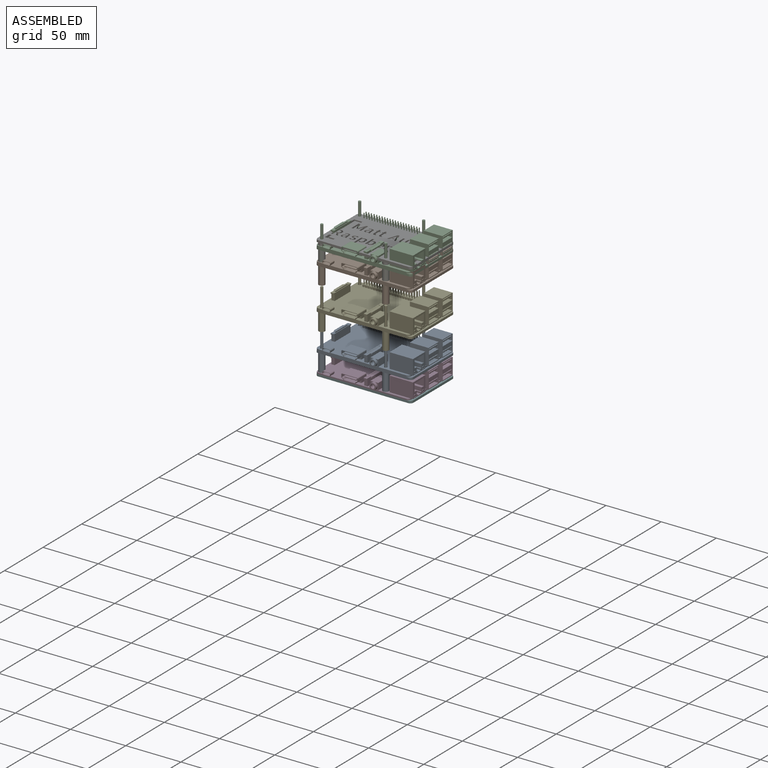
[diagram: assembled view]
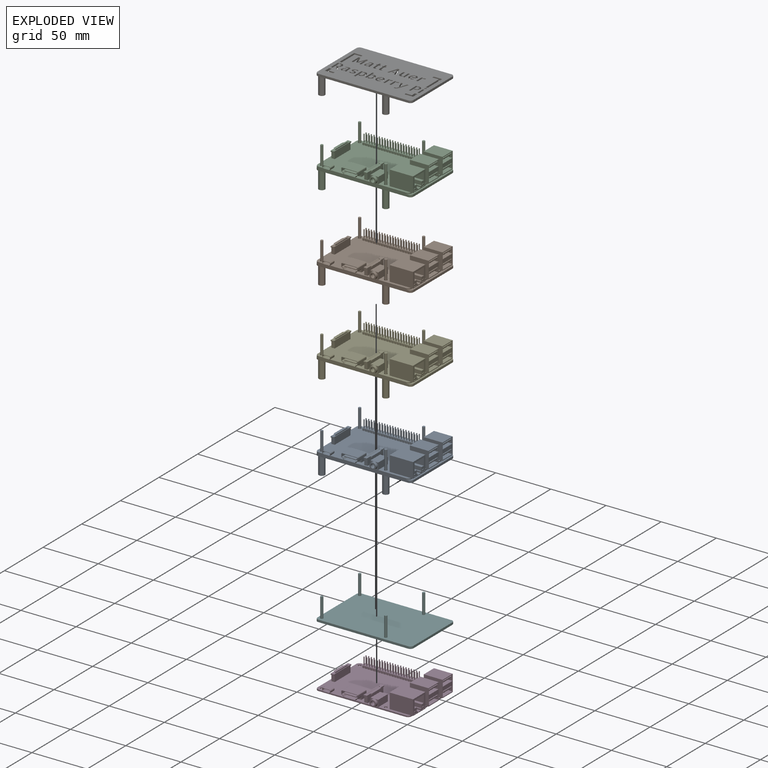
[diagram: exploded view]
GUIDED TOUR — MATED ASSEMBLY WITH SUBASSEMBLIES (Onshape document 9f3c52df6842cc98260f360f, AutoMate assembly 9f3c52df6842cc98260f360f_34691c0668f717b86c9026fd_4a2ab9af8f2942244a8b7adf_default)

This assembly has 11 component occurrences arranged in 7 top-level units: 3 individual components plus 4 subassemblies (S0, S1, S2, S3). The tour has two levels: first the top level, where each subassembly is treated as one rigid unit; then each subassembly is toured internally in its own section (nesting deeper than one subassembly level is flattened into its subassembly's section).

Components are labeled P0..P10 across the whole record; subassembly units are labeled S0..S3. A mate is a constraint between two units; its type names the relative motion it leaves free:
  FASTENED — locks the two components together rigidly (no relative motion),
  SLIDER — leaves translation along the listed axis free.
Axis/direction vectors are unit vectors and 'through' points are millimeter coordinates, both in the assembly's world frame.

TOP-LEVEL MATES (between units; each subassembly's internal mates are listed in its own section)
  1. FASTENED "Fastened 1": S1 <-> P10, direction (0.000, 0.000, 1.000) through (17.41, 7.48, 76.77) mm
  2. FASTENED "Fastened 3": P3 <-> S0, direction (0.000, 0.000, 1.000) through (75.41, 7.48, -13.76) mm
  3. SLIDER "Slider 1": P10 <-> S1, axis (0.000, 0.000, 1.000) through (17.41, 7.48, 84.77) mm
  4. FASTENED "Fastened 2": P8 <-> P3, direction (0.000, 0.000, -1.000) through (75.41, 7.48, -14.86) mm
  5. SLIDER "Slider 8": S1 <-> S3, axis (0.000, 0.000, 1.000) through (17.41, 7.48, 65.62) mm
  6. SLIDER "Slider 3": P8 <-> S0, axis (0.000, 0.000, -1.000) through (75.41, 7.48, -5.86) mm
  7. SLIDER "Slider 2": P3 <-> P8, axis (0.000, 0.000, 1.000) through (75.41, 7.48, -13.76) mm
  8. SLIDER "Slider 6": S0 <-> S3, axis (0.000, 0.000, -1.000) through (17.41, 7.48, 13.24) mm
  9. SLIDER "Slider 7": S1 <-> S2, axis (0.000, 0.000, -1.000) through (17.41, 7.48, 84.62) mm

TOP-LEVEL ASSEMBLY ORDER
  1. S1 — the base component [order heuristic]
  2. S2 — core [order heuristic]
  3. P10 — core [order heuristic]
  4. S3 [order verified]
  5. S0 — core [order heuristic]
  6. P3 — core [order heuristic]
  7. P8 — core [order heuristic]
Order-tag legend:
  [order verified] — this step's position reverses a verified removal order: the component was checked to insert without passing through the ones already placed.
  [order heuristic] — the first 6 components form the assembly's core: parts whose collision-free extraction could not be verified, listed in mate-graph order.

Of the 11 component occurrences, 5 carry the full construction recipe — the FeatureScript program that regenerates the part's solid from scratch; the rest are supplied as boundary geometry only. Each toured unit is shown spotlighted twice — assembled, then exploded with a leader line back to its socket (green = recipe-attached component, orange = geometry-only, blue = subassembly unit; the rest desaturated gray).
NOTE — document 2 of 2 of this assembly tour. The two overview renders and the header above are repeated from document 1; the component sections below continue where the previous document stopped.
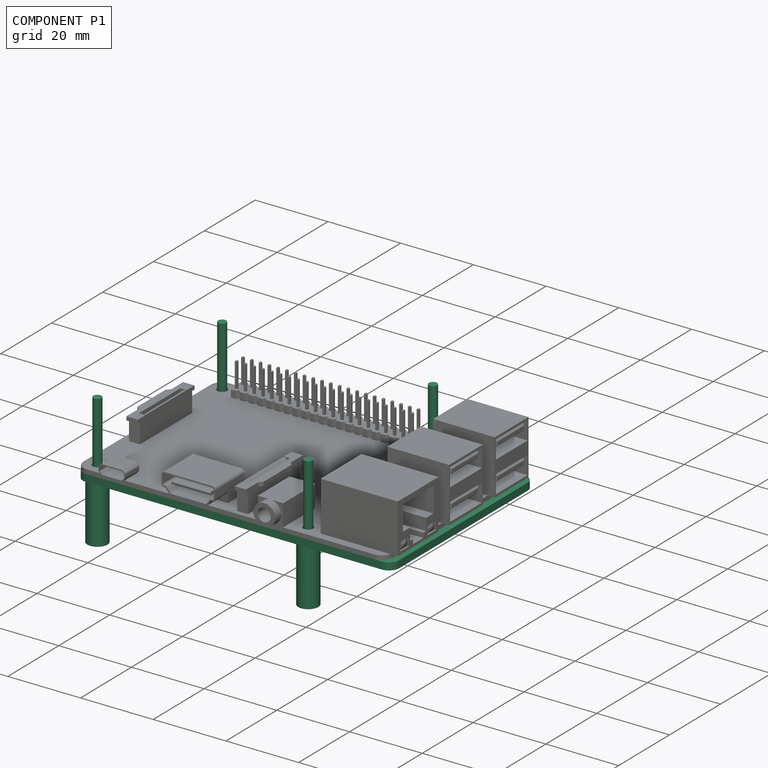
[diagram: component P1 — assembled]
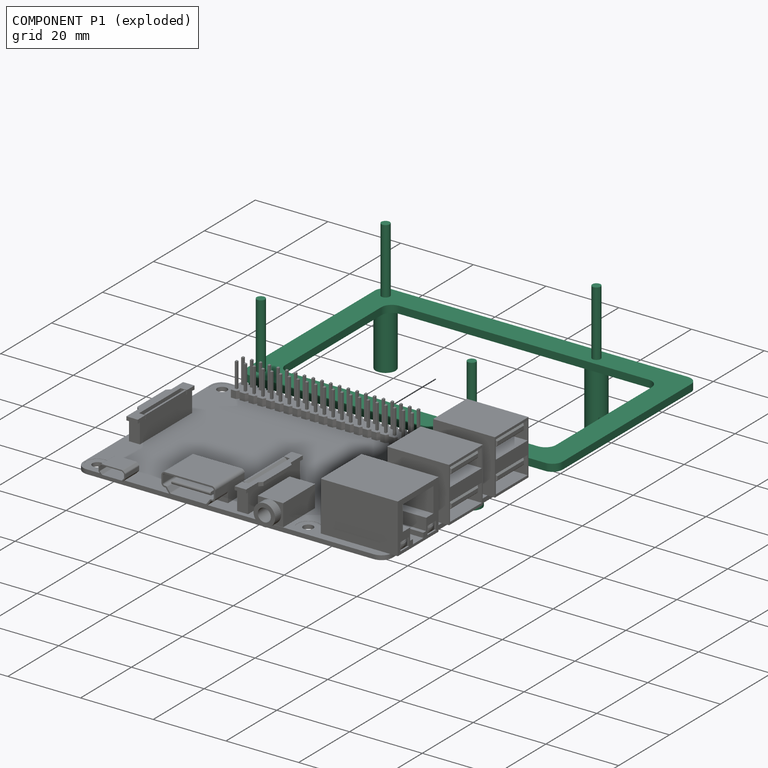
[diagram: component P1 — exploded]
COMPONENT P1 — recipe-attached (CADFS 00966372, mesh-verified: the recipe's output STEP matches this component's geometry to below the mesh-comparison resolution (tessellation chordal tolerance ~0.164 mm)).
Held by: SLIDER mate "Slider 1" to P7; FASTENED mate "Fastened 1" to P7; SLIDER mate "Slider 1" to P7; FASTENED mate "Fastened 1" to P7.
Construction recipe (FeatureScript — the CAD program that rebuilds this solid; sketch coordinates are in the units given by the * unit suffixes, e.g. mm):

FeatureScript 1540;
import(path : "onshape/std/geometry.fs", version : "1540.0");
import(path : "onshape/std/common.fs", version : "1540.0");
const mm = millimeter;
const VERTEX = EntityType.VERTEX;
const EDGE = EntityType.EDGE;
const FACE = EntityType.FACE;
const BODY = EntityType.BODY;
function v(x, y){return vector(x, y);}
function OD(order){return orderDisambiguation(order);}
function OSD(set){return originalSetDisambiguation(set);}
function TD(topology){return topologyDisambiguation(topology);}
function TDD(query){return trueDependencyDisambiguation(query);}
function sQuery(a, b, c) {return sketchEntityQuery(a, b, c);}

annotation { "Feature Type Name" : "Feature", "Feature Type Description" : "" }
export const myFeature = defineFeature(function(context is Context, id is Id, definition is map)
    precondition{}
    {
        {
            var Q0;
            Q0=qCreatedBy(makeId("Top.planeOp"),FACE);
            var sketch = newSketch(context, id + "F0", { "sketchPlane" : qUnion([Q0])});
            skLineSegment(sketch, "E0.bottom", {"start": v(2.8, 0) * mm, "end": v(84.2, 0) * mm});
            skLineSegment(sketch, "E0.top", {"start": v(2.8, 56) * mm, "end": v(84.2, 56) * mm});
            skLineSegment(sketch, "E0.left", {"start": v(0, 2.8) * mm, "end": v(0, 53.2) * mm});
            skLineSegment(sketch, "E0.right", {"start": v(87, 2.8) * mm, "end": v(87, 53.2) * mm});
            skCircle(sketch, "E1", {"center": v(3.5, 3.5) * mm, "radius": 1.15 * mm});
            skCircle(sketch, "E2", {"center": v(3.5, 52.5) * mm, "radius": 1.15 * mm});
            skCircle(sketch, "E3", {"center": v(61.5, 52.5) * mm, "radius": 1.15 * mm});
            skCircle(sketch, "E4", {"center": v(61.5, 3.5) * mm, "radius": 1.15 * mm});
            skPoint(sketch, "E5.visualSharp", {"position": v(0, 0) * mm});
            skArc(sketch, "E5.filletArc", {"start": v(0, 2.8) * mm, "mid": v(0.82, 0.82) * mm, "end": v(2.8, 0) * mm});
            skPoint(sketch, "E6.visualSharp", {"position": v(87, 0) * mm});
            skArc(sketch, "E6.filletArc", {"start": v(84.2, 0) * mm, "mid": v(86.18, 0.82) * mm, "end": v(87, 2.8) * mm});
            skPoint(sketch, "E7.visualSharp", {"position": v(87, 56) * mm});
            skArc(sketch, "E7.filletArc", {"start": v(87, 53.2) * mm, "mid": v(86.18, 55.18) * mm, "end": v(84.2, 56) * mm});
            skPoint(sketch, "E8.visualSharp", {"position": v(0, 56) * mm});
            skArc(sketch, "E8.filletArc", {"start": v(2.8, 56) * mm, "mid": v(0.82, 55.18) * mm, "end": v(0, 53.2) * mm});
            skSolve(sketch);
        }
        {
            var Q0;
            Q0=makeQuery(id+"F0.imprint","IMPRINT",FACE,{"disambiguationData":[TD([[makeQuery(id+"F0.imprint","IMPRINT",EDGE,{"derivedFrom":sQuery(id+"F0.wireOp",EDGE,"E0.bottom")}),1.0]])]});
            var Q1;
            Q1=makeQuery(id+"F0.imprint","IMPRINT",FACE,{"disambiguationData":[TD([[makeQuery(id+"F0.imprint","IMPRINT",EDGE,{"derivedFrom":sQuery(id+"F0.wireOp",EDGE,"E1")}),1.0]])]});
            var Q2;
            Q2=makeQuery(id+"F0.imprint","IMPRINT",FACE,{"disambiguationData":[TD([[makeQuery(id+"F0.imprint","IMPRINT",EDGE,{"derivedFrom":sQuery(id+"F0.wireOp",EDGE,"E3")}),1.0]])]});
            var Q3;
            Q3=makeQuery(id+"F0.imprint","IMPRINT",FACE,{"disambiguationData":[TD([[makeQuery(id+"F0.imprint","IMPRINT",EDGE,{"derivedFrom":sQuery(id+"F0.wireOp",EDGE,"E4")}),1.0]])]});
            var Q4;
            Q4=makeQuery(id+"F0.imprint","IMPRINT",FACE,{"disambiguationData":[TD([[makeQuery(id+"F0.imprint","IMPRINT",EDGE,{"derivedFrom":sQuery(id+"F0.wireOp",EDGE,"E3")}),1.0]])]});
            var Q5;
            Q5=makeQuery(id+"F0.imprint","IMPRINT",FACE,{"disambiguationData":[TD([[makeQuery(id+"F0.imprint","IMPRINT",EDGE,{"derivedFrom":sQuery(id+"F0.wireOp",EDGE,"E4")}),1.0]])]});
            var Q6;
            Q6=makeQuery(id+"F0.imprint","IMPRINT",FACE,{"disambiguationData":[TD([[makeQuery(id+"F0.imprint","IMPRINT",EDGE,{"derivedFrom":sQuery(id+"F0.wireOp",EDGE,"E2")}),1.0]])]});
            extrude(context, id + "F1", {"entities" : qUnion([Q0, Q1, Q2, Q3, Q4, Q5, Q6]), "depth" : 2 * mm, "offsetDistance" : 25 * mm});
        }
        {
            var Q0;
            Q0=makeQuery(id+"F0.imprint","IMPRINT",FACE,{"disambiguationData":[TD([[makeQuery(id+"F0.imprint","IMPRINT",EDGE,{"derivedFrom":sQuery(id+"F0.wireOp",EDGE,"E4")}),1.0]])]});
            var Q1;
            Q1=makeQuery(id+"F0.imprint","IMPRINT",FACE,{"disambiguationData":[TD([[makeQuery(id+"F0.imprint","IMPRINT",EDGE,{"derivedFrom":sQuery(id+"F0.wireOp",EDGE,"E3")}),1.0]])]});
            var Q2;
            Q2=makeQuery(id+"F0.imprint","IMPRINT",FACE,{"disambiguationData":[TD([[makeQuery(id+"F0.imprint","IMPRINT",EDGE,{"derivedFrom":sQuery(id+"F0.wireOp",EDGE,"E2")}),1.0]])]});
            var Q3;
            Q3=makeQuery(id+"F0.imprint","IMPRINT",FACE,{"disambiguationData":[TD([[makeQuery(id+"F0.imprint","IMPRINT",EDGE,{"derivedFrom":sQuery(id+"F0.wireOp",EDGE,"E1")}),1.0]])]});
            extrude(context, id + "F2", {"entities" : qUnion([Q0, Q1, Q2, Q3]), "operationType" : NewBodyOperationType.ADD, "depth" : 105 * mm, "offsetDistance" : 25 * mm});
        }
        {
            var Q0;
            Q0=qCreatedBy(makeId("Top.planeOp"),FACE);
            cPlane(context, id + "F3", {"entities" : qUnion([Q0]), "cplaneType" : CPlaneType.OFFSET, "offset" : 25 * mm, "width" : 150 * mm, "height" : 150 * mm});
        }
        {
            var Q0;
            Q0=qCreatedBy(id+"F3.planeOp",FACE);
            var sketch = newSketch(context, id + "F4", { "sketchPlane" : qUnion([Q0])});
            skPoint(sketch, "E9.0", {"position": v(3.5, 52.5) * mm});
            skPoint(sketch, "E10.0", {"position": v(61.5, 52.5) * mm});
            skPoint(sketch, "E11.0", {"position": v(3.5, 3.5) * mm});
            skPoint(sketch, "E12.0", {"position": v(61.5, 3.5) * mm});
            skLineSegment(sketch, "E13.0", {"start": v(2.8, 56) * mm, "end": v(84.2, 56) * mm});
            skPoint(sketch, "E14.0", {"position": v(0.82, 55.18) * mm});
            skLineSegment(sketch, "E15.0", {"start": v(0, 2.8) * mm, "end": v(0, 53.2) * mm});
            skArc(sketch, "E16.0", {"start": v(2.8, 56) * mm, "mid": v(0.82, 55.18) * mm, "end": v(0, 53.2) * mm});
            skArc(sketch, "E17.0", {"start": v(87, 53.2) * mm, "mid": v(86.18, 55.18) * mm, "end": v(84.2, 56) * mm});
            skLineSegment(sketch, "E18.0", {"start": v(87, 2.8) * mm, "end": v(87, 53.2) * mm});
            skLineSegment(sketch, "E19.0", {"start": v(2.8, 0) * mm, "end": v(84.2, 0) * mm});
            skArc(sketch, "E20.0", {"start": v(84.2, 0) * mm, "mid": v(86.18, 0.82) * mm, "end": v(87, 2.8) * mm});
            skArc(sketch, "E21.0", {"start": v(0, 2.8) * mm, "mid": v(0.82, 0.82) * mm, "end": v(2.8, 0) * mm});
            skCircle(sketch, "E22", {"center": v(3.5, 52.5) * mm, "radius": 1.75 * mm});
            skCircle(sketch, "E23", {"center": v(3.5, 3.5) * mm, "radius": 1.75 * mm});
            skCircle(sketch, "E24", {"center": v(61.5, 3.5) * mm, "radius": 1.75 * mm});
            skCircle(sketch, "E25", {"center": v(61.5, 52.5) * mm, "radius": 1.75 * mm});
            skCircle(sketch, "E26", {"center": v(3.5, 3.5) * mm, "radius": 2.75 * mm});
            skCircle(sketch, "E27", {"center": v(61.5, 3.5) * mm, "radius": 2.75 * mm});
            skCircle(sketch, "E28", {"center": v(3.5, 52.5) * mm, "radius": 2.75 * mm});
            skCircle(sketch, "E29", {"center": v(61.5, 52.5) * mm, "radius": 2.75 * mm});
            skSolve(sketch);
        }
        {
            var Q0;
            Q0=makeQuery(id+"F4.imprint","IMPRINT",FACE,{"disambiguationData":[TD([[makeQuery(id+"F4.imprint","IMPRINT",EDGE,{"derivedFrom":sQuery(id+"F4.wireOp",EDGE,"E23")}),1.0]])]});
            var Q1;
            Q1=makeQuery(id+"F4.imprint","IMPRINT",FACE,{"disambiguationData":[TD([[makeQuery(id+"F4.imprint","IMPRINT",EDGE,{"derivedFrom":sQuery(id+"F4.wireOp",EDGE,"E23")}),-1.0]])]});
            var Q2;
            Q2=makeQuery(id+"F4.imprint","IMPRINT",FACE,{"disambiguationData":[TD([[makeQuery(id+"F4.imprint","IMPRINT",EDGE,{"derivedFrom":sQuery(id+"F4.wireOp",EDGE,"E13.0")}),-1.0]])]});
            var Q3;
            Q3=makeQuery(id+"F4.imprint","IMPRINT",FACE,{"disambiguationData":[TD([[makeQuery(id+"F4.imprint","IMPRINT",EDGE,{"derivedFrom":sQuery(id+"F4.wireOp",EDGE,"E24")}),-1.0]])]});
            var Q4;
            Q4=makeQuery(id+"F4.imprint","IMPRINT",FACE,{"disambiguationData":[TD([[makeQuery(id+"F4.imprint","IMPRINT",EDGE,{"derivedFrom":sQuery(id+"F4.wireOp",EDGE,"E24")}),1.0]])]});
            var Q5;
            Q5=makeQuery(id+"F4.imprint","IMPRINT",FACE,{"disambiguationData":[TD([[makeQuery(id+"F4.imprint","IMPRINT",EDGE,{"derivedFrom":sQuery(id+"F4.wireOp",EDGE,"E25")}),-1.0]])]});
            var Q6;
            Q6=makeQuery(id+"F4.imprint","IMPRINT",FACE,{"disambiguationData":[TD([[makeQuery(id+"F4.imprint","IMPRINT",EDGE,{"derivedFrom":sQuery(id+"F4.wireOp",EDGE,"E25")}),1.0]])]});
            var Q7;
            Q7=makeQuery(id+"F4.imprint","IMPRINT",FACE,{"disambiguationData":[TD([[makeQuery(id+"F4.imprint","IMPRINT",EDGE,{"derivedFrom":sQuery(id+"F4.wireOp",EDGE,"E22")}),-1.0]])]});
            var Q8;
            Q8=makeQuery(id+"F4.imprint","IMPRINT",FACE,{"disambiguationData":[TD([[makeQuery(id+"F4.imprint","IMPRINT",EDGE,{"derivedFrom":sQuery(id+"F4.wireOp",EDGE,"E22")}),1.0]])]});
            extrude(context, id + "F5", {"entities" : qUnion([Q0, Q1, Q2, Q3, Q4, Q5, Q6, Q7, Q8]), "depth" : 2 * mm, "offsetDistance" : 25 * mm});
        }
        {
            var Q0;
            Q0=makeQuery(id+"F4.imprint","IMPRINT",FACE,{"disambiguationData":[TD([[makeQuery(id+"F4.imprint","IMPRINT",EDGE,{"derivedFrom":sQuery(id+"F4.wireOp",EDGE,"E23")}),-1.0]])]});
            var Q1;
            Q1=makeQuery(id+"F4.imprint","IMPRINT",FACE,{"disambiguationData":[TD([[makeQuery(id+"F4.imprint","IMPRINT",EDGE,{"derivedFrom":sQuery(id+"F4.wireOp",EDGE,"E22")}),-1.0]])]});
            var Q2;
            Q2=makeQuery(id+"F4.imprint","IMPRINT",FACE,{"disambiguationData":[TD([[makeQuery(id+"F4.imprint","IMPRINT",EDGE,{"derivedFrom":sQuery(id+"F4.wireOp",EDGE,"E25")}),-1.0]])]});
            var Q3;
            Q3=makeQuery(id+"F4.imprint","IMPRINT",FACE,{"disambiguationData":[TD([[makeQuery(id+"F4.imprint","IMPRINT",EDGE,{"derivedFrom":sQuery(id+"F4.wireOp",EDGE,"E24")}),-1.0]])]});
            var Q4;
            Q4=makeQuery(id+"F5.opExtrude","CAP_FACE",FACE,{"disambiguationData":[OSD([sQuery(id+"F4.wireOp",EDGE,"E13.0"),sQuery(id+"F4.wireOp",EDGE,"E15.0"),sQuery(id+"F4.wireOp",EDGE,"E16.0"),sQuery(id+"F4.wireOp",EDGE,"E17.0"),sQuery(id+"F4.wireOp",EDGE,"E18.0"),sQuery(id+"F4.wireOp",EDGE,"E19.0"),sQuery(id+"F4.wireOp",EDGE,"E20.0"),sQuery(id+"F4.wireOp",EDGE,"E21.0"),sQuery(id+"F4.wireOp",EDGE,"E26"),sQuery(id+"F4.wireOp",EDGE,"E27"),sQuery(id+"F4.wireOp",EDGE,"E28"),sQuery(id+"F4.wireOp",EDGE,"E29")])],"isStart":false});
            var Q5;
            Q5=makeQuery(id+"F5.opExtrude","SWEPT_BODY",BODY,{"disambiguationData":[OSD([sQuery(id+"F4.wireOp",EDGE,"E13.0"),sQuery(id+"F4.wireOp",EDGE,"E15.0"),sQuery(id+"F4.wireOp",EDGE,"E16.0"),sQuery(id+"F4.wireOp",EDGE,"E17.0"),sQuery(id+"F4.wireOp",EDGE,"E18.0"),sQuery(id+"F4.wireOp",EDGE,"E19.0"),sQuery(id+"F4.wireOp",EDGE,"E20.0"),sQuery(id+"F4.wireOp",EDGE,"E21.0"),sQuery(id+"F4.wireOp",EDGE,"E26"),sQuery(id+"F4.wireOp",EDGE,"E27"),sQuery(id+"F4.wireOp",EDGE,"E28"),sQuery(id+"F4.wireOp",EDGE,"E29")])]});
            extrude(context, id + "F6", {"entities" : qUnion([Q0, Q1, Q2, Q3]), "operationType" : NewBodyOperationType.ADD, "endBound" : BoundingType.UP_TO_SURFACE, "depth" : 20 * mm, "endBoundEntityFace" : qUnion([Q4]), "endBoundEntityBody" : qUnion([Q5]), "offsetDistance" : 25 * mm});
        }
        {
            var Q0;
            Q0=makeQuery(id+"F4.imprint","IMPRINT",FACE,{"disambiguationData":[TD([[makeQuery(id+"F4.imprint","IMPRINT",EDGE,{"derivedFrom":sQuery(id+"F4.wireOp",EDGE,"E23")}),-1.0]])]});
            var Q1;
            Q1=makeQuery(id+"F4.imprint","IMPRINT",FACE,{"disambiguationData":[TD([[makeQuery(id+"F4.imprint","IMPRINT",EDGE,{"derivedFrom":sQuery(id+"F4.wireOp",EDGE,"E22")}),-1.0]])]});
            var Q2;
            Q2=makeQuery(id+"F4.imprint","IMPRINT",FACE,{"disambiguationData":[TD([[makeQuery(id+"F4.imprint","IMPRINT",EDGE,{"derivedFrom":sQuery(id+"F4.wireOp",EDGE,"E24")}),-1.0]])]});
            var Q3;
            Q3=makeQuery(id+"F4.imprint","IMPRINT",FACE,{"disambiguationData":[TD([[makeQuery(id+"F4.imprint","IMPRINT",EDGE,{"derivedFrom":sQuery(id+"F4.wireOp",EDGE,"E25")}),-1.0]])]});
            extrude(context, id + "F7", {"entities" : qUnion([Q0, Q1, Q2, Q3]), "operationType" : NewBodyOperationType.ADD, "oppositeDirection" : true, "depth" : 16 * mm, "offsetDistance" : 25 * mm});
        }
        {
            var Q0;
            Q0=makeQuery(id+"F1.opExtrude","SWEPT_BODY",BODY,{"disambiguationData":[OSD([sQuery(id+"F0.wireOp",EDGE,"E0.bottom"),sQuery(id+"F0.wireOp",EDGE,"E0.top"),sQuery(id+"F0.wireOp",EDGE,"E0.left"),sQuery(id+"F0.wireOp",EDGE,"E0.right"),sQuery(id+"F0.wireOp",EDGE,"E5.filletArc"),sQuery(id+"F0.wireOp",EDGE,"E6.filletArc"),sQuery(id+"F0.wireOp",EDGE,"E7.filletArc"),sQuery(id+"F0.wireOp",EDGE,"E8.filletArc")])]});
            deleteBodies(context, id + "F8", {"entities" : qUnion([Q0])});
        }
        {
            var Q0;
            Q0=makeQuery(id+"F5.opExtrude","CAP_FACE",FACE,{"disambiguationData":[OSD([sQuery(id+"F4.wireOp",EDGE,"E13.0"),sQuery(id+"F4.wireOp",EDGE,"E15.0"),sQuery(id+"F4.wireOp",EDGE,"E16.0"),sQuery(id+"F4.wireOp",EDGE,"E17.0"),sQuery(id+"F4.wireOp",EDGE,"E18.0"),sQuery(id+"F4.wireOp",EDGE,"E19.0"),sQuery(id+"F4.wireOp",EDGE,"E20.0"),sQuery(id+"F4.wireOp",EDGE,"E21.0")])],"isStart":false});
            var sketch = newSketch(context, id + "F9", { "sketchPlane" : qUnion([Q0])});
            skCircle(sketch, "E30.0", {"center": v(3.5, 52.5) * mm, "radius": 1.15 * mm});
            skCircle(sketch, "E31.0", {"center": v(61.5, 52.5) * mm, "radius": 1.15 * mm});
            skCircle(sketch, "E32.0", {"center": v(61.5, 3.5) * mm, "radius": 1.15 * mm});
            skCircle(sketch, "E33.0", {"center": v(3.5, 3.5) * mm, "radius": 1.15 * mm});
            skSolve(sketch);
        }
        {
            var Q0;
            Q0 = qSketchRegion(id + "F9", true);
            extrude(context, id + "F10", {"entities" : qUnion([Q0]), "operationType" : NewBodyOperationType.ADD, "depth" : 18 * mm, "offsetDistance" : 25 * mm});
        }
        {
            var Q0;
            Q0=makeQuery(id+"F5.opExtrude","CAP_FACE",FACE,{"disambiguationData":[OSD([sQuery(id+"F4.wireOp",EDGE,"E13.0"),sQuery(id+"F4.wireOp",EDGE,"E15.0"),sQuery(id+"F4.wireOp",EDGE,"E16.0"),sQuery(id+"F4.wireOp",EDGE,"E17.0"),sQuery(id+"F4.wireOp",EDGE,"E18.0"),sQuery(id+"F4.wireOp",EDGE,"E19.0"),sQuery(id+"F4.wireOp",EDGE,"E20.0"),sQuery(id+"F4.wireOp",EDGE,"E21.0")])],"isStart":false});
            var sketch = newSketch(context, id + "F11", { "sketchPlane" : qUnion([Q0])});
            skLineSegment(sketch, "E34.0", {"start": v(2.8, 56) * mm, "end": v(84.2, 56) * mm});
            skPoint(sketch, "E35.0", {"position": v(2.8, 56) * mm});
            skPoint(sketch, "E36.0", {"position": v(0.82, 55.18) * mm});
            skPoint(sketch, "E37.0", {"position": v(0, 53.2) * mm});
            skArc(sketch, "E38.0", {"start": v(2.8, 56) * mm, "mid": v(0.82, 55.18) * mm, "end": v(0, 53.2) * mm});
            skLineSegment(sketch, "E39.0", {"start": v(0, 2.8) * mm, "end": v(0, 53.2) * mm});
            skArc(sketch, "E40.0", {"start": v(0, 2.8) * mm, "mid": v(0.82, 0.82) * mm, "end": v(2.8, 0) * mm});
            skLineSegment(sketch, "E41.0", {"start": v(2.8, 0) * mm, "end": v(84.2, 0) * mm});
            skPoint(sketch, "E42.0", {"position": v(0, 2.8) * mm});
            skArc(sketch, "E43.0", {"start": v(84.2, 0) * mm, "mid": v(86.18, 0.82) * mm, "end": v(87, 2.8) * mm});
            skLineSegment(sketch, "E44.0", {"start": v(87, 2.8) * mm, "end": v(87, 53.2) * mm});
            skLineSegment(sketch, "E45.1", {"start": v(6.3, 9.2) * mm, "end": v(6.3, 46.8) * mm});
            skLineSegment(sketch, "E45.2", {"start": v(9.2, 6.3) * mm, "end": v(77.8, 6.3) * mm});
            skLineSegment(sketch, "E45.5", {"start": v(80.7, 9.2) * mm, "end": v(80.7, 46.8) * mm});
            skLineSegment(sketch, "E45.7", {"start": v(9.2, 49.7) * mm, "end": v(77.8, 49.7) * mm});
            skPoint(sketch, "E46.visualSharp", {"position": v(6.3, 49.7) * mm});
            skArc(sketch, "E46.filletArc", {"start": v(9.2, 49.7) * mm, "mid": v(7.15, 48.85) * mm, "end": v(6.3, 46.8) * mm});
            skPoint(sketch, "E47.visualSharp", {"position": v(6.3, 6.3) * mm});
            skArc(sketch, "E47.filletArc", {"start": v(6.3, 9.2) * mm, "mid": v(7.15, 7.15) * mm, "end": v(9.2, 6.3) * mm});
            skPoint(sketch, "E48.visualSharp", {"position": v(80.7, 6.3) * mm});
            skArc(sketch, "E48.filletArc", {"start": v(77.8, 6.3) * mm, "mid": v(79.85, 7.15) * mm, "end": v(80.7, 9.2) * mm});
            skPoint(sketch, "E49.visualSharp", {"position": v(80.7, 49.7) * mm});
            skArc(sketch, "E49.filletArc", {"start": v(80.7, 46.8) * mm, "mid": v(79.85, 48.85) * mm, "end": v(77.8, 49.7) * mm});
            skSolve(sketch);
        }
        {
            var Q0;
            Q0=makeQuery(id+"F11.imprint","IMPRINT",FACE,{"disambiguationData":[TD([[makeQuery(id+"F11.imprint","IMPRINT",EDGE,{"derivedFrom":sQuery(id+"F11.wireOp",EDGE,"E45.1")}),-1.0]])]});
            extrude(context, id + "F12", {"entities" : qUnion([Q0]), "operationType" : NewBodyOperationType.REMOVE, "oppositeDirection" : true, "depth" : 2 * mm, "offsetDistance" : 25 * mm});
        }
    });
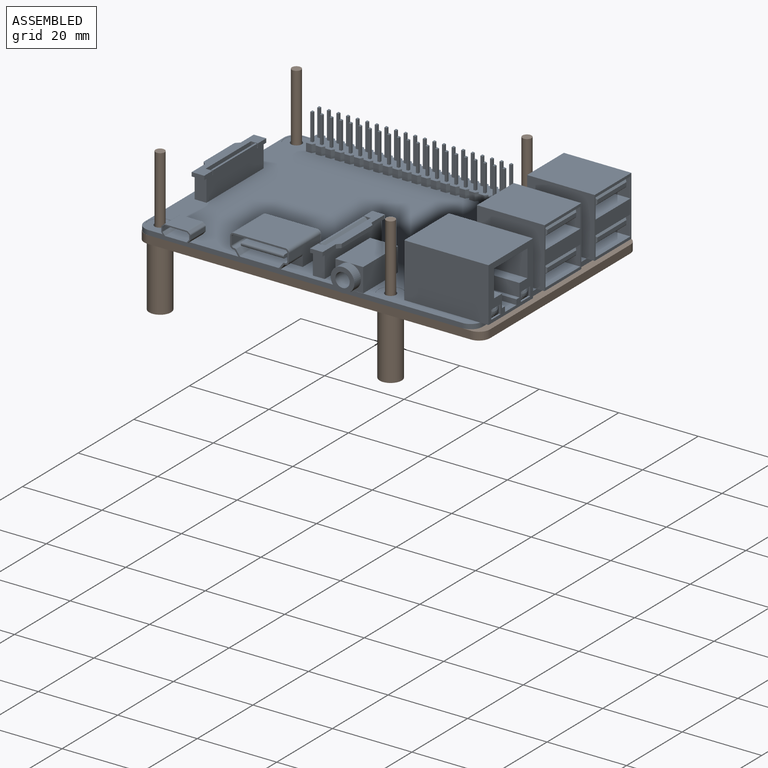
[diagram: subassembly S2 — assembled view]
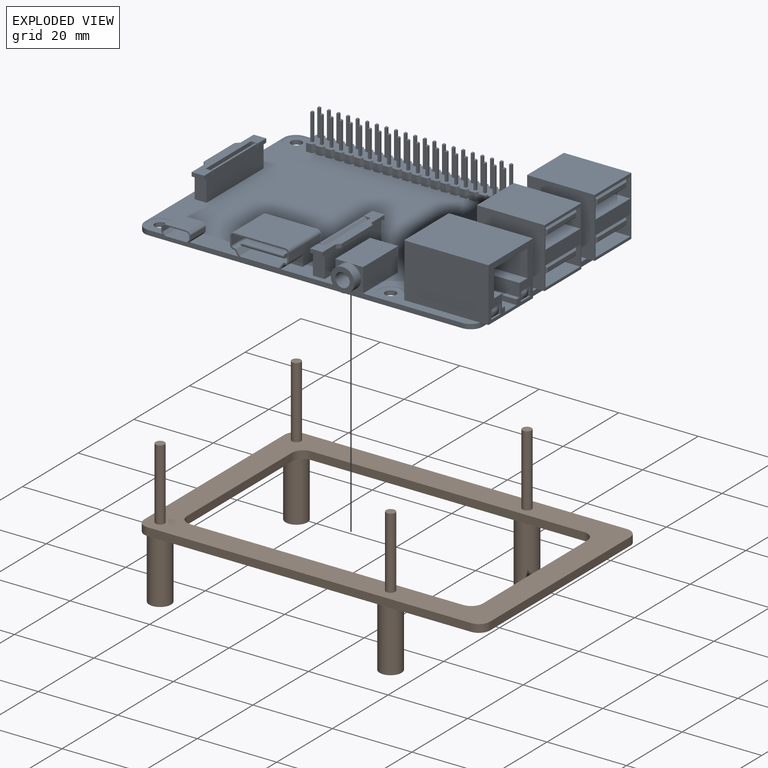
[diagram: subassembly S2 — exploded view]
SUBASSEMBLY S2 TOUR — 2 components, shown here in isolation at its own camera.

INTERNAL MATES
  1. SLIDER "Slider 1": P2 <-> P6, axis (0.000, 0.000, 1.000) through (17.41, 7.48, 90.10) mm
  2. FASTENED "Fastened 1": P6 <-> P2, direction (0.000, 0.000, -1.000) through (17.41, 7.48, 88.95) mm
  3. FASTENED "Fastened 1": P6 <-> P2, direction (0.000, 0.000, -1.000) through (17.41, 7.48, 88.95) mm
  4. SLIDER "Slider 1": P2 <-> P6, axis (0.000, 0.000, 1.000) through (17.41, 7.48, 90.10) mm

ASSEMBLY ORDER (within the subassembly)
  1. P2 — the base component [order verified]
  2. P6 [order verified]
Order-tag legend:
  [order verified] — this step's position reverses a verified removal order: the component was checked to insert without passing through the ones already placed.
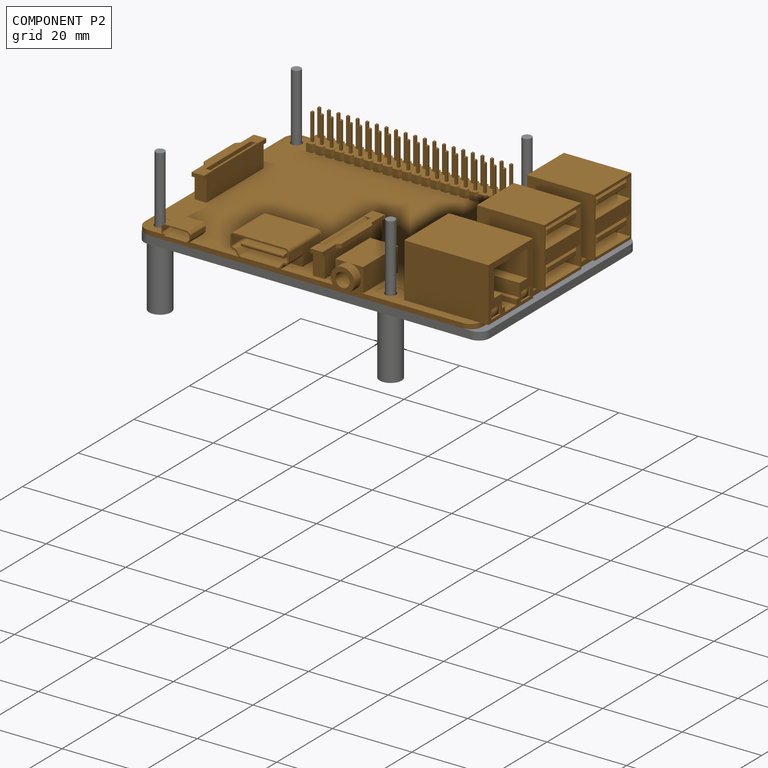
[diagram: component P2 — assembled]
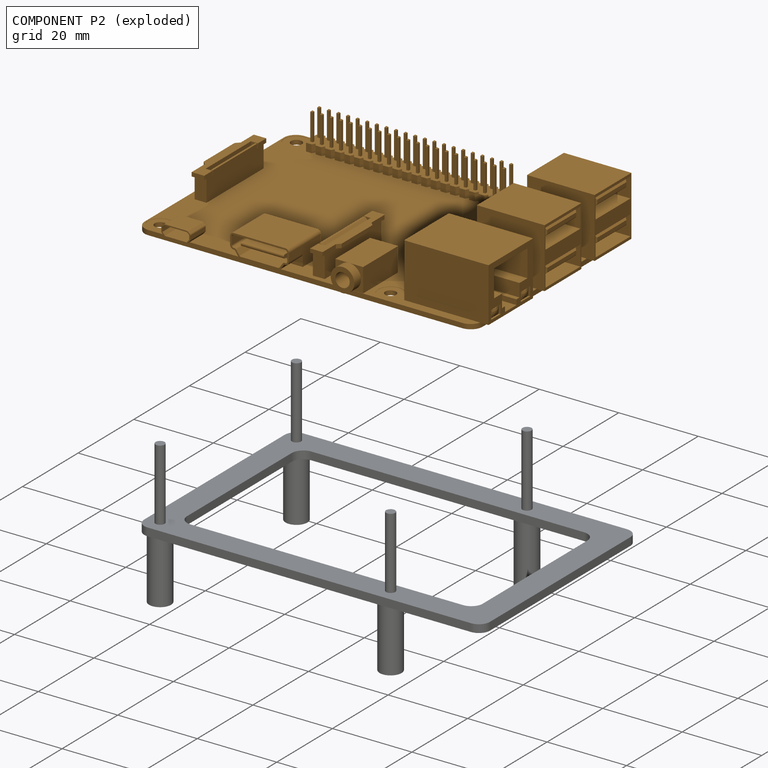
[diagram: component P2 — exploded]
COMPONENT P2 — geometry summary (no construction recipe available for this part):
  bounding box: 87.3 x 58.4 x 17.5 mm
  B-rep topology: 1 solid, 787 faces, 3892 edges
  volume: 15025 mm^3 (17% of its bounding box)
Held by: SLIDER mate "Slider 1" to P6; FASTENED mate "Fastened 1" to P6; FASTENED mate "Fastened 1" to P6; SLIDER mate "Slider 1" to P6.
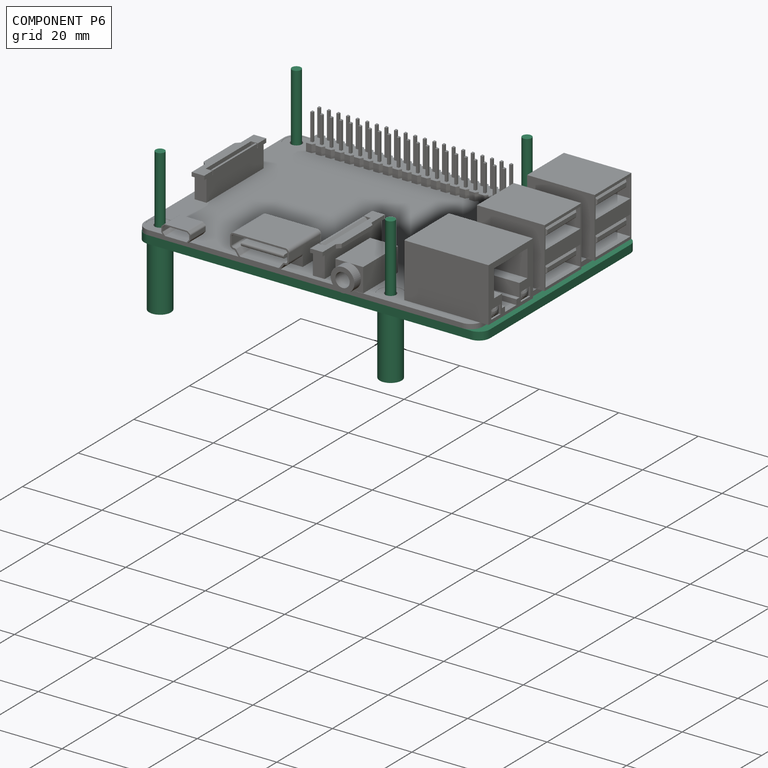
[diagram: component P6 — assembled]
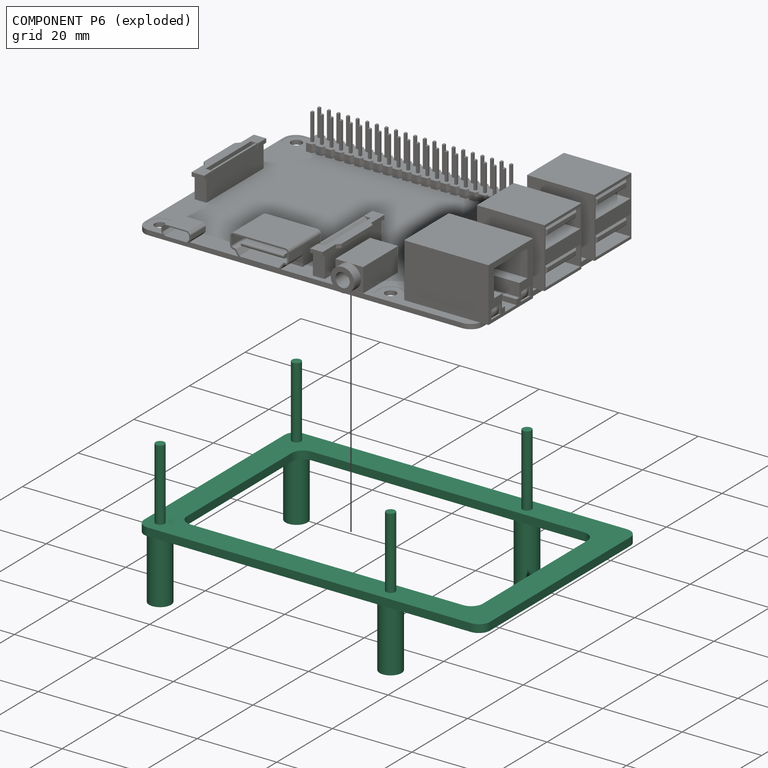
[diagram: component P6 — exploded]
COMPONENT P6 — recipe-attached (CADFS 00966372, mesh-verified: the recipe's output STEP matches this component's geometry to below the mesh-comparison resolution (tessellation chordal tolerance ~0.164 mm)).
Held by: SLIDER mate "Slider 1" to P2; FASTENED mate "Fastened 1" to P2; FASTENED mate "Fastened 1" to P2; SLIDER mate "Slider 1" to P2.
Construction recipe (FeatureScript — the CAD program that rebuilds this solid; sketch coordinates are in the units given by the * unit suffixes, e.g. mm):

FeatureScript 1540;
import(path : "onshape/std/geometry.fs", version : "1540.0");
import(path : "onshape/std/common.fs", version : "1540.0");
const mm = millimeter;
const VERTEX = EntityType.VERTEX;
const EDGE = EntityType.EDGE;
const FACE = EntityType.FACE;
const BODY = EntityType.BODY;
function v(x, y){return vector(x, y);}
function OD(order){return orderDisambiguation(order);}
function OSD(set){return originalSetDisambiguation(set);}
function TD(topology){return topologyDisambiguation(topology);}
function TDD(query){return trueDependencyDisambiguation(query);}
function sQuery(a, b, c) {return sketchEntityQuery(a, b, c);}

annotation { "Feature Type Name" : "Feature", "Feature Type Description" : "" }
export const myFeature = defineFeature(function(context is Context, id is Id, definition is map)
    precondition{}
    {
        {
            var Q0;
            Q0=qCreatedBy(makeId("Top.planeOp"),FACE);
            var sketch = newSketch(context, id + "F0", { "sketchPlane" : qUnion([Q0])});
            skLineSegment(sketch, "E0.bottom", {"start": v(2.8, 0) * mm, "end": v(84.2, 0) * mm});
            skLineSegment(sketch, "E0.top", {"start": v(2.8, 56) * mm, "end": v(84.2, 56) * mm});
            skLineSegment(sketch, "E0.left", {"start": v(0, 2.8) * mm, "end": v(0, 53.2) * mm});
            skLineSegment(sketch, "E0.right", {"start": v(87, 2.8) * mm, "end": v(87, 53.2) * mm});
            skCircle(sketch, "E1", {"center": v(3.5, 3.5) * mm, "radius": 1.15 * mm});
            skCircle(sketch, "E2", {"center": v(3.5, 52.5) * mm, "radius": 1.15 * mm});
            skCircle(sketch, "E3", {"center": v(61.5, 52.5) * mm, "radius": 1.15 * mm});
            skCircle(sketch, "E4", {"center": v(61.5, 3.5) * mm, "radius": 1.15 * mm});
            skPoint(sketch, "E5.visualSharp", {"position": v(0, 0) * mm});
            skArc(sketch, "E5.filletArc", {"start": v(0, 2.8) * mm, "mid": v(0.82, 0.82) * mm, "end": v(2.8, 0) * mm});
            skPoint(sketch, "E6.visualSharp", {"position": v(87, 0) * mm});
            skArc(sketch, "E6.filletArc", {"start": v(84.2, 0) * mm, "mid": v(86.18, 0.82) * mm, "end": v(87, 2.8) * mm});
            skPoint(sketch, "E7.visualSharp", {"position": v(87, 56) * mm});
            skArc(sketch, "E7.filletArc", {"start": v(87, 53.2) * mm, "mid": v(86.18, 55.18) * mm, "end": v(84.2, 56) * mm});
            skPoint(sketch, "E8.visualSharp", {"position": v(0, 56) * mm});
            skArc(sketch, "E8.filletArc", {"start": v(2.8, 56) * mm, "mid": v(0.82, 55.18) * mm, "end": v(0, 53.2) * mm});
            skSolve(sketch);
        }
        {
            var Q0;
            Q0=makeQuery(id+"F0.imprint","IMPRINT",FACE,{"disambiguationData":[TD([[makeQuery(id+"F0.imprint","IMPRINT",EDGE,{"derivedFrom":sQuery(id+"F0.wireOp",EDGE,"E0.bottom")}),1.0]])]});
            var Q1;
            Q1=makeQuery(id+"F0.imprint","IMPRINT",FACE,{"disambiguationData":[TD([[makeQuery(id+"F0.imprint","IMPRINT",EDGE,{"derivedFrom":sQuery(id+"F0.wireOp",EDGE,"E1")}),1.0]])]});
            var Q2;
            Q2=makeQuery(id+"F0.imprint","IMPRINT",FACE,{"disambiguationData":[TD([[makeQuery(id+"F0.imprint","IMPRINT",EDGE,{"derivedFrom":sQuery(id+"F0.wireOp",EDGE,"E3")}),1.0]])]});
            var Q3;
            Q3=makeQuery(id+"F0.imprint","IMPRINT",FACE,{"disambiguationData":[TD([[makeQuery(id+"F0.imprint","IMPRINT",EDGE,{"derivedFrom":sQuery(id+"F0.wireOp",EDGE,"E4")}),1.0]])]});
            var Q4;
            Q4=makeQuery(id+"F0.imprint","IMPRINT",FACE,{"disambiguationData":[TD([[makeQuery(id+"F0.imprint","IMPRINT",EDGE,{"derivedFrom":sQuery(id+"F0.wireOp",EDGE,"E3")}),1.0]])]});
            var Q5;
            Q5=makeQuery(id+"F0.imprint","IMPRINT",FACE,{"disambiguationData":[TD([[makeQuery(id+"F0.imprint","IMPRINT",EDGE,{"derivedFrom":sQuery(id+"F0.wireOp",EDGE,"E4")}),1.0]])]});
            var Q6;
            Q6=makeQuery(id+"F0.imprint","IMPRINT",FACE,{"disambiguationData":[TD([[makeQuery(id+"F0.imprint","IMPRINT",EDGE,{"derivedFrom":sQuery(id+"F0.wireOp",EDGE,"E2")}),1.0]])]});
            extrude(context, id + "F1", {"entities" : qUnion([Q0, Q1, Q2, Q3, Q4, Q5, Q6]), "depth" : 2 * mm, "offsetDistance" : 25 * mm});
        }
        {
            var Q0;
            Q0=makeQuery(id+"F0.imprint","IMPRINT",FACE,{"disambiguationData":[TD([[makeQuery(id+"F0.imprint","IMPRINT",EDGE,{"derivedFrom":sQuery(id+"F0.wireOp",EDGE,"E4")}),1.0]])]});
            var Q1;
            Q1=makeQuery(id+"F0.imprint","IMPRINT",FACE,{"disambiguationData":[TD([[makeQuery(id+"F0.imprint","IMPRINT",EDGE,{"derivedFrom":sQuery(id+"F0.wireOp",EDGE,"E3")}),1.0]])]});
            var Q2;
            Q2=makeQuery(id+"F0.imprint","IMPRINT",FACE,{"disambiguationData":[TD([[makeQuery(id+"F0.imprint","IMPRINT",EDGE,{"derivedFrom":sQuery(id+"F0.wireOp",EDGE,"E2")}),1.0]])]});
            var Q3;
            Q3=makeQuery(id+"F0.imprint","IMPRINT",FACE,{"disambiguationData":[TD([[makeQuery(id+"F0.imprint","IMPRINT",EDGE,{"derivedFrom":sQuery(id+"F0.wireOp",EDGE,"E1")}),1.0]])]});
            extrude(context, id + "F2", {"entities" : qUnion([Q0, Q1, Q2, Q3]), "operationType" : NewBodyOperationType.ADD, "depth" : 105 * mm, "offsetDistance" : 25 * mm});
        }
        {
            var Q0;
            Q0=qCreatedBy(makeId("Top.planeOp"),FACE);
            cPlane(context, id + "F3", {"entities" : qUnion([Q0]), "cplaneType" : CPlaneType.OFFSET, "offset" : 25 * mm, "width" : 150 * mm, "height" : 150 * mm});
        }
        {
            var Q0;
            Q0=qCreatedBy(id+"F3.planeOp",FACE);
            var sketch = newSketch(context, id + "F4", { "sketchPlane" : qUnion([Q0])});
            skPoint(sketch, "E9.0", {"position": v(3.5, 52.5) * mm});
            skPoint(sketch, "E10.0", {"position": v(61.5, 52.5) * mm});
            skPoint(sketch, "E11.0", {"position": v(3.5, 3.5) * mm});
            skPoint(sketch, "E12.0", {"position": v(61.5, 3.5) * mm});
            skLineSegment(sketch, "E13.0", {"start": v(2.8, 56) * mm, "end": v(84.2, 56) * mm});
            skPoint(sketch, "E14.0", {"position": v(0.82, 55.18) * mm});
            skLineSegment(sketch, "E15.0", {"start": v(0, 2.8) * mm, "end": v(0, 53.2) * mm});
            skArc(sketch, "E16.0", {"start": v(2.8, 56) * mm, "mid": v(0.82, 55.18) * mm, "end": v(0, 53.2) * mm});
            skArc(sketch, "E17.0", {"start": v(87, 53.2) * mm, "mid": v(86.18, 55.18) * mm, "end": v(84.2, 56) * mm});
            skLineSegment(sketch, "E18.0", {"start": v(87, 2.8) * mm, "end": v(87, 53.2) * mm});
            skLineSegment(sketch, "E19.0", {"start": v(2.8, 0) * mm, "end": v(84.2, 0) * mm});
            skArc(sketch, "E20.0", {"start": v(84.2, 0) * mm, "mid": v(86.18, 0.82) * mm, "end": v(87, 2.8) * mm});
            skArc(sketch, "E21.0", {"start": v(0, 2.8) * mm, "mid": v(0.82, 0.82) * mm, "end": v(2.8, 0) * mm});
            skCircle(sketch, "E22", {"center": v(3.5, 52.5) * mm, "radius": 1.75 * mm});
            skCircle(sketch, "E23", {"center": v(3.5, 3.5) * mm, "radius": 1.75 * mm});
            skCircle(sketch, "E24", {"center": v(61.5, 3.5) * mm, "radius": 1.75 * mm});
            skCircle(sketch, "E25", {"center": v(61.5, 52.5) * mm, "radius": 1.75 * mm});
            skCircle(sketch, "E26", {"center": v(3.5, 3.5) * mm, "radius": 2.75 * mm});
            skCircle(sketch, "E27", {"center": v(61.5, 3.5) * mm, "radius": 2.75 * mm});
            skCircle(sketch, "E28", {"center": v(3.5, 52.5) * mm, "radius": 2.75 * mm});
            skCircle(sketch, "E29", {"center": v(61.5, 52.5) * mm, "radius": 2.75 * mm});
            skSolve(sketch);
        }
        {
            var Q0;
            Q0=makeQuery(id+"F4.imprint","IMPRINT",FACE,{"disambiguationData":[TD([[makeQuery(id+"F4.imprint","IMPRINT",EDGE,{"derivedFrom":sQuery(id+"F4.wireOp",EDGE,"E23")}),1.0]])]});
            var Q1;
            Q1=makeQuery(id+"F4.imprint","IMPRINT",FACE,{"disambiguationData":[TD([[makeQuery(id+"F4.imprint","IMPRINT",EDGE,{"derivedFrom":sQuery(id+"F4.wireOp",EDGE,"E23")}),-1.0]])]});
            var Q2;
            Q2=makeQuery(id+"F4.imprint","IMPRINT",FACE,{"disambiguationData":[TD([[makeQuery(id+"F4.imprint","IMPRINT",EDGE,{"derivedFrom":sQuery(id+"F4.wireOp",EDGE,"E13.0")}),-1.0]])]});
            var Q3;
            Q3=makeQuery(id+"F4.imprint","IMPRINT",FACE,{"disambiguationData":[TD([[makeQuery(id+"F4.imprint","IMPRINT",EDGE,{"derivedFrom":sQuery(id+"F4.wireOp",EDGE,"E24")}),-1.0]])]});
            var Q4;
            Q4=makeQuery(id+"F4.imprint","IMPRINT",FACE,{"disambiguationData":[TD([[makeQuery(id+"F4.imprint","IMPRINT",EDGE,{"derivedFrom":sQuery(id+"F4.wireOp",EDGE,"E24")}),1.0]])]});
            var Q5;
            Q5=makeQuery(id+"F4.imprint","IMPRINT",FACE,{"disambiguationData":[TD([[makeQuery(id+"F4.imprint","IMPRINT",EDGE,{"derivedFrom":sQuery(id+"F4.wireOp",EDGE,"E25")}),-1.0]])]});
            var Q6;
            Q6=makeQuery(id+"F4.imprint","IMPRINT",FACE,{"disambiguationData":[TD([[makeQuery(id+"F4.imprint","IMPRINT",EDGE,{"derivedFrom":sQuery(id+"F4.wireOp",EDGE,"E25")}),1.0]])]});
            var Q7;
            Q7=makeQuery(id+"F4.imprint","IMPRINT",FACE,{"disambiguationData":[TD([[makeQuery(id+"F4.imprint","IMPRINT",EDGE,{"derivedFrom":sQuery(id+"F4.wireOp",EDGE,"E22")}),-1.0]])]});
            var Q8;
            Q8=makeQuery(id+"F4.imprint","IMPRINT",FACE,{"disambiguationData":[TD([[makeQuery(id+"F4.imprint","IMPRINT",EDGE,{"derivedFrom":sQuery(id+"F4.wireOp",EDGE,"E22")}),1.0]])]});
            extrude(context, id + "F5", {"entities" : qUnion([Q0, Q1, Q2, Q3, Q4, Q5, Q6, Q7, Q8]), "depth" : 2 * mm, "offsetDistance" : 25 * mm});
        }
        {
            var Q0;
            Q0=makeQuery(id+"F4.imprint","IMPRINT",FACE,{"disambiguationData":[TD([[makeQuery(id+"F4.imprint","IMPRINT",EDGE,{"derivedFrom":sQuery(id+"F4.wireOp",EDGE,"E23")}),-1.0]])]});
            var Q1;
            Q1=makeQuery(id+"F4.imprint","IMPRINT",FACE,{"disambiguationData":[TD([[makeQuery(id+"F4.imprint","IMPRINT",EDGE,{"derivedFrom":sQuery(id+"F4.wireOp",EDGE,"E22")}),-1.0]])]});
            var Q2;
            Q2=makeQuery(id+"F4.imprint","IMPRINT",FACE,{"disambiguationData":[TD([[makeQuery(id+"F4.imprint","IMPRINT",EDGE,{"derivedFrom":sQuery(id+"F4.wireOp",EDGE,"E25")}),-1.0]])]});
            var Q3;
            Q3=makeQuery(id+"F4.imprint","IMPRINT",FACE,{"disambiguationData":[TD([[makeQuery(id+"F4.imprint","IMPRINT",EDGE,{"derivedFrom":sQuery(id+"F4.wireOp",EDGE,"E24")}),-1.0]])]});
            var Q4;
            Q4=makeQuery(id+"F5.opExtrude","CAP_FACE",FACE,{"disambiguationData":[OSD([sQuery(id+"F4.wireOp",EDGE,"E13.0"),sQuery(id+"F4.wireOp",EDGE,"E15.0"),sQuery(id+"F4.wireOp",EDGE,"E16.0"),sQuery(id+"F4.wireOp",EDGE,"E17.0"),sQuery(id+"F4.wireOp",EDGE,"E18.0"),sQuery(id+"F4.wireOp",EDGE,"E19.0"),sQuery(id+"F4.wireOp",EDGE,"E20.0"),sQuery(id+"F4.wireOp",EDGE,"E21.0"),sQuery(id+"F4.wireOp",EDGE,"E26"),sQuery(id+"F4.wireOp",EDGE,"E27"),sQuery(id+"F4.wireOp",EDGE,"E28"),sQuery(id+"F4.wireOp",EDGE,"E29")])],"isStart":false});
            var Q5;
            Q5=makeQuery(id+"F5.opExtrude","SWEPT_BODY",BODY,{"disambiguationData":[OSD([sQuery(id+"F4.wireOp",EDGE,"E13.0"),sQuery(id+"F4.wireOp",EDGE,"E15.0"),sQuery(id+"F4.wireOp",EDGE,"E16.0"),sQuery(id+"F4.wireOp",EDGE,"E17.0"),sQuery(id+"F4.wireOp",EDGE,"E18.0"),sQuery(id+"F4.wireOp",EDGE,"E19.0"),sQuery(id+"F4.wireOp",EDGE,"E20.0"),sQuery(id+"F4.wireOp",EDGE,"E21.0"),sQuery(id+"F4.wireOp",EDGE,"E26"),sQuery(id+"F4.wireOp",EDGE,"E27"),sQuery(id+"F4.wireOp",EDGE,"E28"),sQuery(id+"F4.wireOp",EDGE,"E29")])]});
            extrude(context, id + "F6", {"entities" : qUnion([Q0, Q1, Q2, Q3]), "operationType" : NewBodyOperationType.ADD, "endBound" : BoundingType.UP_TO_SURFACE, "depth" : 20 * mm, "endBoundEntityFace" : qUnion([Q4]), "endBoundEntityBody" : qUnion([Q5]), "offsetDistance" : 25 * mm});
        }
        {
            var Q0;
            Q0=makeQuery(id+"F4.imprint","IMPRINT",FACE,{"disambiguationData":[TD([[makeQuery(id+"F4.imprint","IMPRINT",EDGE,{"derivedFrom":sQuery(id+"F4.wireOp",EDGE,"E23")}),-1.0]])]});
            var Q1;
            Q1=makeQuery(id+"F4.imprint","IMPRINT",FACE,{"disambiguationData":[TD([[makeQuery(id+"F4.imprint","IMPRINT",EDGE,{"derivedFrom":sQuery(id+"F4.wireOp",EDGE,"E22")}),-1.0]])]});
            var Q2;
            Q2=makeQuery(id+"F4.imprint","IMPRINT",FACE,{"disambiguationData":[TD([[makeQuery(id+"F4.imprint","IMPRINT",EDGE,{"derivedFrom":sQuery(id+"F4.wireOp",EDGE,"E24")}),-1.0]])]});
            var Q3;
            Q3=makeQuery(id+"F4.imprint","IMPRINT",FACE,{"disambiguationData":[TD([[makeQuery(id+"F4.imprint","IMPRINT",EDGE,{"derivedFrom":sQuery(id+"F4.wireOp",EDGE,"E25")}),-1.0]])]});
            extrude(context, id + "F7", {"entities" : qUnion([Q0, Q1, Q2, Q3]), "operationType" : NewBodyOperationType.ADD, "oppositeDirection" : true, "depth" : 16 * mm, "offsetDistance" : 25 * mm});
        }
        {
            var Q0;
            Q0=makeQuery(id+"F1.opExtrude","SWEPT_BODY",BODY,{"disambiguationData":[OSD([sQuery(id+"F0.wireOp",EDGE,"E0.bottom"),sQuery(id+"F0.wireOp",EDGE,"E0.top"),sQuery(id+"F0.wireOp",EDGE,"E0.left"),sQuery(id+"F0.wireOp",EDGE,"E0.right"),sQuery(id+"F0.wireOp",EDGE,"E5.filletArc"),sQuery(id+"F0.wireOp",EDGE,"E6.filletArc"),sQuery(id+"F0.wireOp",EDGE,"E7.filletArc"),sQuery(id+"F0.wireOp",EDGE,"E8.filletArc")])]});
            deleteBodies(context, id + "F8", {"entities" : qUnion([Q0])});
        }
        {
            var Q0;
            Q0=makeQuery(id+"F5.opExtrude","CAP_FACE",FACE,{"disambiguationData":[OSD([sQuery(id+"F4.wireOp",EDGE,"E13.0"),sQuery(id+"F4.wireOp",EDGE,"E15.0"),sQuery(id+"F4.wireOp",EDGE,"E16.0"),sQuery(id+"F4.wireOp",EDGE,"E17.0"),sQuery(id+"F4.wireOp",EDGE,"E18.0"),sQuery(id+"F4.wireOp",EDGE,"E19.0"),sQuery(id+"F4.wireOp",EDGE,"E20.0"),sQuery(id+"F4.wireOp",EDGE,"E21.0")])],"isStart":false});
            var sketch = newSketch(context, id + "F9", { "sketchPlane" : qUnion([Q0])});
            skCircle(sketch, "E30.0", {"center": v(3.5, 52.5) * mm, "radius": 1.15 * mm});
            skCircle(sketch, "E31.0", {"center": v(61.5, 52.5) * mm, "radius": 1.15 * mm});
            skCircle(sketch, "E32.0", {"center": v(61.5, 3.5) * mm, "radius": 1.15 * mm});
            skCircle(sketch, "E33.0", {"center": v(3.5, 3.5) * mm, "radius": 1.15 * mm});
            skSolve(sketch);
        }
        {
            var Q0;
            Q0 = qSketchRegion(id + "F9", true);
            extrude(context, id + "F10", {"entities" : qUnion([Q0]), "operationType" : NewBodyOperationType.ADD, "depth" : 18 * mm, "offsetDistance" : 25 * mm});
        }
        {
            var Q0;
            Q0=makeQuery(id+"F5.opExtrude","CAP_FACE",FACE,{"disambiguationData":[OSD([sQuery(id+"F4.wireOp",EDGE,"E13.0"),sQuery(id+"F4.wireOp",EDGE,"E15.0"),sQuery(id+"F4.wireOp",EDGE,"E16.0"),sQuery(id+"F4.wireOp",EDGE,"E17.0"),sQuery(id+"F4.wireOp",EDGE,"E18.0"),sQuery(id+"F4.wireOp",EDGE,"E19.0"),sQuery(id+"F4.wireOp",EDGE,"E20.0"),sQuery(id+"F4.wireOp",EDGE,"E21.0")])],"isStart":false});
            var sketch = newSketch(context, id + "F11", { "sketchPlane" : qUnion([Q0])});
            skLineSegment(sketch, "E34.0", {"start": v(2.8, 56) * mm, "end": v(84.2, 56) * mm});
            skPoint(sketch, "E35.0", {"position": v(2.8, 56) * mm});
            skPoint(sketch, "E36.0", {"position": v(0.82, 55.18) * mm});
            skPoint(sketch, "E37.0", {"position": v(0, 53.2) * mm});
            skArc(sketch, "E38.0", {"start": v(2.8, 56) * mm, "mid": v(0.82, 55.18) * mm, "end": v(0, 53.2) * mm});
            skLineSegment(sketch, "E39.0", {"start": v(0, 2.8) * mm, "end": v(0, 53.2) * mm});
            skArc(sketch, "E40.0", {"start": v(0, 2.8) * mm, "mid": v(0.82, 0.82) * mm, "end": v(2.8, 0) * mm});
            skLineSegment(sketch, "E41.0", {"start": v(2.8, 0) * mm, "end": v(84.2, 0) * mm});
            skPoint(sketch, "E42.0", {"position": v(0, 2.8) * mm});
            skArc(sketch, "E43.0", {"start": v(84.2, 0) * mm, "mid": v(86.18, 0.82) * mm, "end": v(87, 2.8) * mm});
            skLineSegment(sketch, "E44.0", {"start": v(87, 2.8) * mm, "end": v(87, 53.2) * mm});
            skLineSegment(sketch, "E45.1", {"start": v(6.3, 9.2) * mm, "end": v(6.3, 46.8) * mm});
            skLineSegment(sketch, "E45.2", {"start": v(9.2, 6.3) * mm, "end": v(77.8, 6.3) * mm});
            skLineSegment(sketch, "E45.5", {"start": v(80.7, 9.2) * mm, "end": v(80.7, 46.8) * mm});
            skLineSegment(sketch, "E45.7", {"start": v(9.2, 49.7) * mm, "end": v(77.8, 49.7) * mm});
            skPoint(sketch, "E46.visualSharp", {"position": v(6.3, 49.7) * mm});
            skArc(sketch, "E46.filletArc", {"start": v(9.2, 49.7) * mm, "mid": v(7.15, 48.85) * mm, "end": v(6.3, 46.8) * mm});
            skPoint(sketch, "E47.visualSharp", {"position": v(6.3, 6.3) * mm});
            skArc(sketch, "E47.filletArc", {"start": v(6.3, 9.2) * mm, "mid": v(7.15, 7.15) * mm, "end": v(9.2, 6.3) * mm});
            skPoint(sketch, "E48.visualSharp", {"position": v(80.7, 6.3) * mm});
            skArc(sketch, "E48.filletArc", {"start": v(77.8, 6.3) * mm, "mid": v(79.85, 7.15) * mm, "end": v(80.7, 9.2) * mm});
            skPoint(sketch, "E49.visualSharp", {"position": v(80.7, 49.7) * mm});
            skArc(sketch, "E49.filletArc", {"start": v(80.7, 46.8) * mm, "mid": v(79.85, 48.85) * mm, "end": v(77.8, 49.7) * mm});
            skSolve(sketch);
        }
        {
            var Q0;
            Q0=makeQuery(id+"F11.imprint","IMPRINT",FACE,{"disambiguationData":[TD([[makeQuery(id+"F11.imprint","IMPRINT",EDGE,{"derivedFrom":sQuery(id+"F11.wireOp",EDGE,"E45.1")}),-1.0]])]});
            extrude(context, id + "F12", {"entities" : qUnion([Q0]), "operationType" : NewBodyOperationType.REMOVE, "oppositeDirection" : true, "depth" : 2 * mm, "offsetDistance" : 25 * mm});
        }
    });
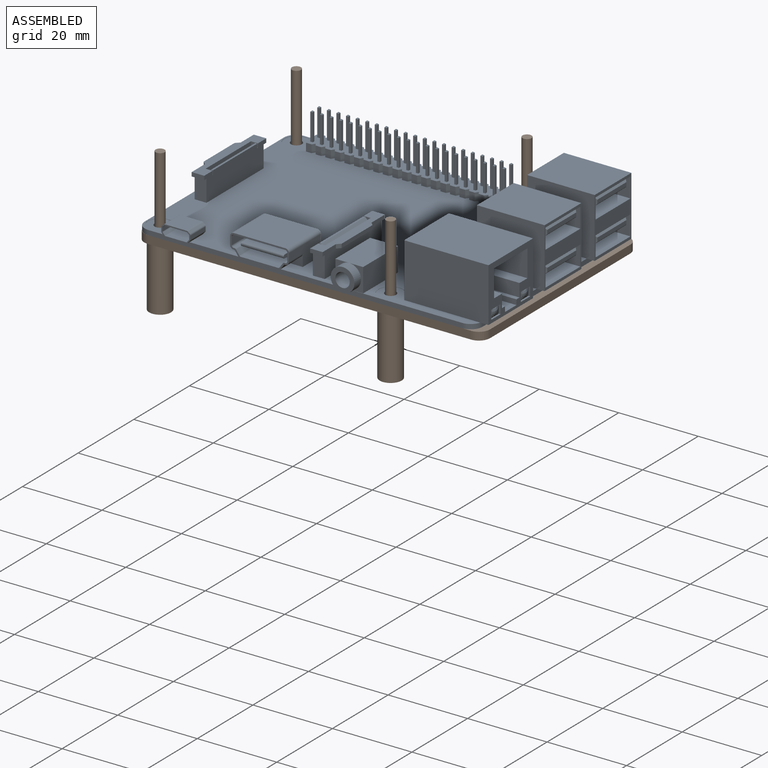
[diagram: subassembly S3 — assembled view]
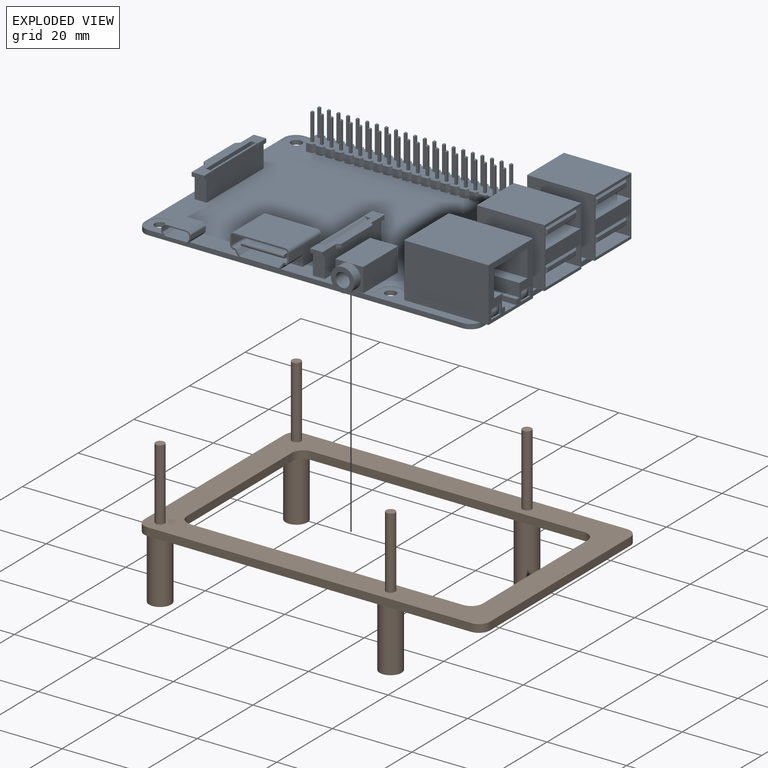
[diagram: subassembly S3 — exploded view]
SUBASSEMBLY S3 TOUR — 2 components, shown here in isolation at its own camera.

INTERNAL MATES
  1. SLIDER "Slider 1": P5 <-> P9, axis (0.000, 0.000, 1.000) through (17.41, 7.48, 38.81) mm
  2. FASTENED "Fastened 1": P9 <-> P5, direction (0.000, 0.000, -1.000) through (17.41, 7.48, 37.66) mm
  3. FASTENED "Fastened 1": P9 <-> P5, direction (0.000, 0.000, -1.000) through (17.41, 7.48, 37.66) mm
  4. SLIDER "Slider 1": P5 <-> P9, axis (0.000, 0.000, 1.000) through (17.41, 7.48, 38.81) mm

ASSEMBLY ORDER (within the subassembly)
  1. P5 — the base component [order verified]
  2. P9 [order verified]
Order-tag legend:
  [order verified] — this step's position reverses a verified removal order: the component was checked to insert without passing through the ones already placed.
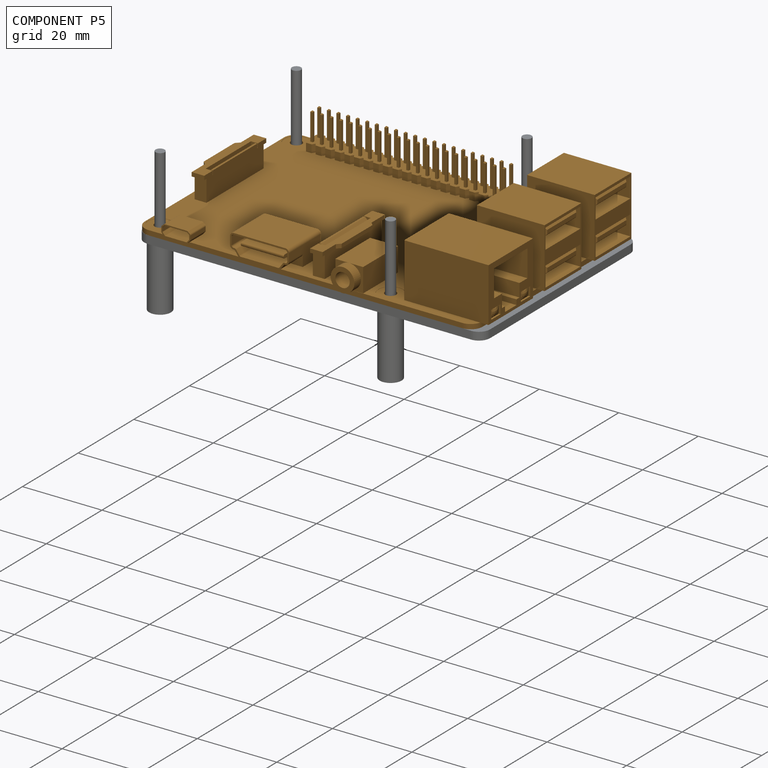
[diagram: component P5 — assembled]
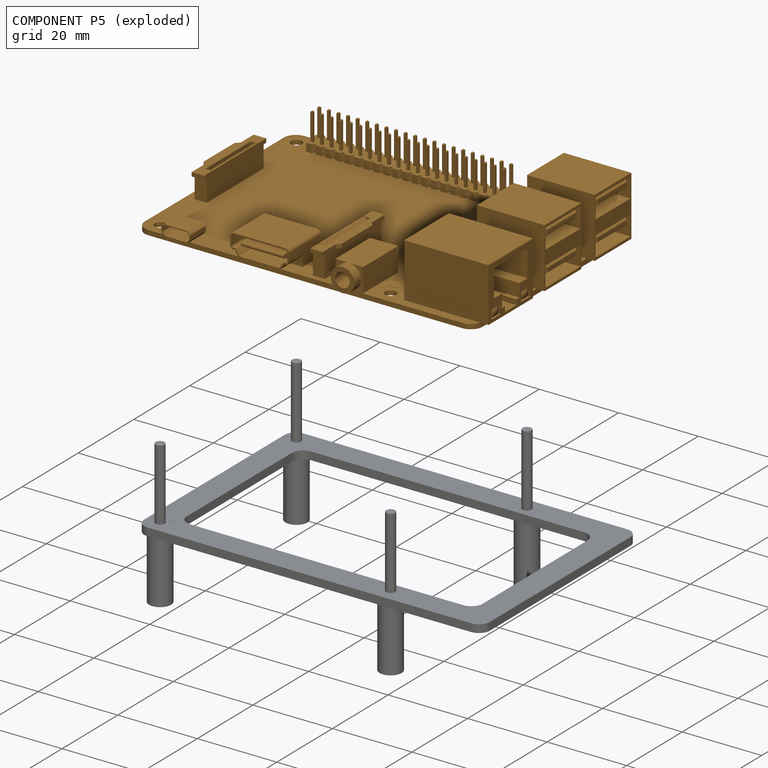
[diagram: component P5 — exploded]
COMPONENT P5 — geometry summary (no construction recipe available for this part):
  bounding box: 87.3 x 58.4 x 17.5 mm
  B-rep topology: 1 solid, 787 faces, 3892 edges
  volume: 15025 mm^3 (17% of its bounding box)
Held by: SLIDER mate "Slider 1" to P9; FASTENED mate "Fastened 1" to P9; FASTENED mate "Fastened 1" to P9; SLIDER mate "Slider 1" to P9.
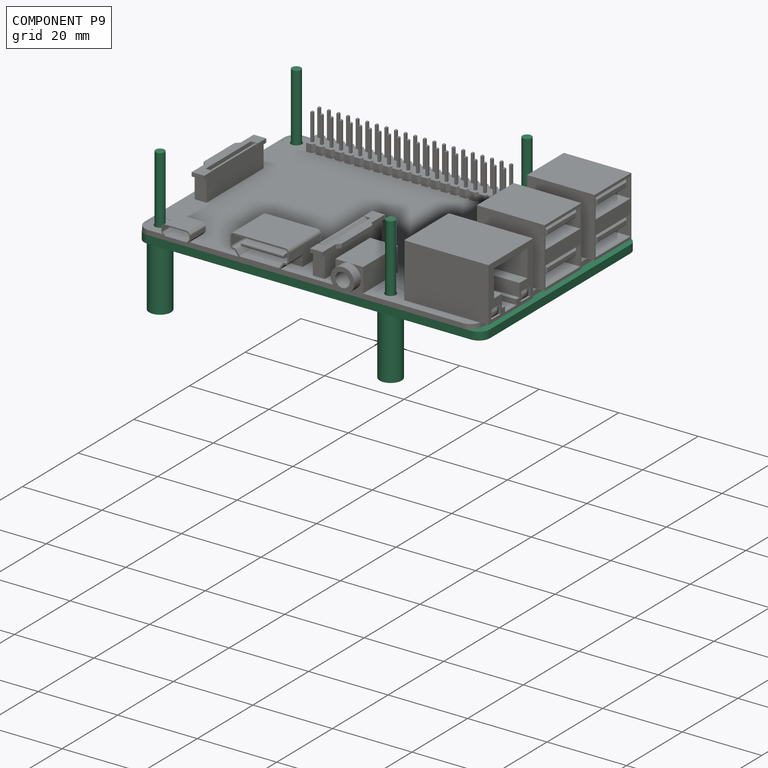
[diagram: component P9 — assembled]
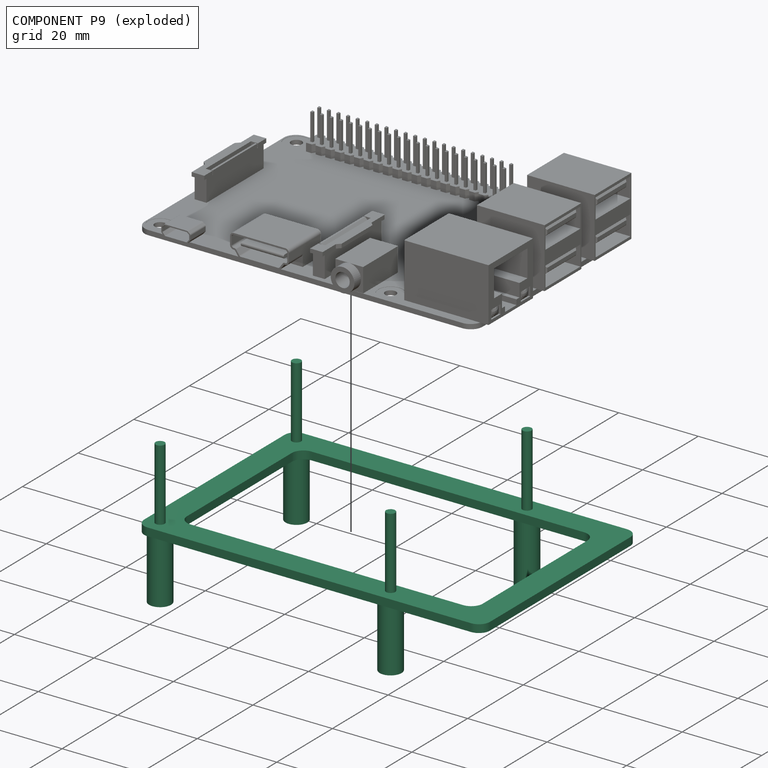
[diagram: component P9 — exploded]
COMPONENT P9 — recipe-attached (CADFS 00966372, mesh-verified: the recipe's output STEP matches this component's geometry to below the mesh-comparison resolution (tessellation chordal tolerance ~0.164 mm)).
Held by: SLIDER mate "Slider 1" to P5; FASTENED mate "Fastened 1" to P5; FASTENED mate "Fastened 1" to P5; SLIDER mate "Slider 1" to P5.
Construction recipe (FeatureScript — the CAD program that rebuilds this solid; sketch coordinates are in the units given by the * unit suffixes, e.g. mm):

FeatureScript 1540;
import(path : "onshape/std/geometry.fs", version : "1540.0");
import(path : "onshape/std/common.fs", version : "1540.0");
const mm = millimeter;
const VERTEX = EntityType.VERTEX;
const EDGE = EntityType.EDGE;
const FACE = EntityType.FACE;
const BODY = EntityType.BODY;
function v(x, y){return vector(x, y);}
function OD(order){return orderDisambiguation(order);}
function OSD(set){return originalSetDisambiguation(set);}
function TD(topology){return topologyDisambiguation(topology);}
function TDD(query){return trueDependencyDisambiguation(query);}
function sQuery(a, b, c) {return sketchEntityQuery(a, b, c);}

annotation { "Feature Type Name" : "Feature", "Feature Type Description" : "" }
export const myFeature = defineFeature(function(context is Context, id is Id, definition is map)
    precondition{}
    {
        {
            var Q0;
            Q0=qCreatedBy(makeId("Top.planeOp"),FACE);
            var sketch = newSketch(context, id + "F0", { "sketchPlane" : qUnion([Q0])});
            skLineSegment(sketch, "E0.bottom", {"start": v(2.8, 0) * mm, "end": v(84.2, 0) * mm});
            skLineSegment(sketch, "E0.top", {"start": v(2.8, 56) * mm, "end": v(84.2, 56) * mm});
            skLineSegment(sketch, "E0.left", {"start": v(0, 2.8) * mm, "end": v(0, 53.2) * mm});
            skLineSegment(sketch, "E0.right", {"start": v(87, 2.8) * mm, "end": v(87, 53.2) * mm});
            skCircle(sketch, "E1", {"center": v(3.5, 3.5) * mm, "radius": 1.15 * mm});
            skCircle(sketch, "E2", {"center": v(3.5, 52.5) * mm, "radius": 1.15 * mm});
            skCircle(sketch, "E3", {"center": v(61.5, 52.5) * mm, "radius": 1.15 * mm});
            skCircle(sketch, "E4", {"center": v(61.5, 3.5) * mm, "radius": 1.15 * mm});
            skPoint(sketch, "E5.visualSharp", {"position": v(0, 0) * mm});
            skArc(sketch, "E5.filletArc", {"start": v(0, 2.8) * mm, "mid": v(0.82, 0.82) * mm, "end": v(2.8, 0) * mm});
            skPoint(sketch, "E6.visualSharp", {"position": v(87, 0) * mm});
            skArc(sketch, "E6.filletArc", {"start": v(84.2, 0) * mm, "mid": v(86.18, 0.82) * mm, "end": v(87, 2.8) * mm});
            skPoint(sketch, "E7.visualSharp", {"position": v(87, 56) * mm});
            skArc(sketch, "E7.filletArc", {"start": v(87, 53.2) * mm, "mid": v(86.18, 55.18) * mm, "end": v(84.2, 56) * mm});
            skPoint(sketch, "E8.visualSharp", {"position": v(0, 56) * mm});
            skArc(sketch, "E8.filletArc", {"start": v(2.8, 56) * mm, "mid": v(0.82, 55.18) * mm, "end": v(0, 53.2) * mm});
            skSolve(sketch);
        }
        {
            var Q0;
            Q0=makeQuery(id+"F0.imprint","IMPRINT",FACE,{"disambiguationData":[TD([[makeQuery(id+"F0.imprint","IMPRINT",EDGE,{"derivedFrom":sQuery(id+"F0.wireOp",EDGE,"E0.bottom")}),1.0]])]});
            var Q1;
            Q1=makeQuery(id+"F0.imprint","IMPRINT",FACE,{"disambiguationData":[TD([[makeQuery(id+"F0.imprint","IMPRINT",EDGE,{"derivedFrom":sQuery(id+"F0.wireOp",EDGE,"E1")}),1.0]])]});
            var Q2;
            Q2=makeQuery(id+"F0.imprint","IMPRINT",FACE,{"disambiguationData":[TD([[makeQuery(id+"F0.imprint","IMPRINT",EDGE,{"derivedFrom":sQuery(id+"F0.wireOp",EDGE,"E3")}),1.0]])]});
            var Q3;
            Q3=makeQuery(id+"F0.imprint","IMPRINT",FACE,{"disambiguationData":[TD([[makeQuery(id+"F0.imprint","IMPRINT",EDGE,{"derivedFrom":sQuery(id+"F0.wireOp",EDGE,"E4")}),1.0]])]});
            var Q4;
            Q4=makeQuery(id+"F0.imprint","IMPRINT",FACE,{"disambiguationData":[TD([[makeQuery(id+"F0.imprint","IMPRINT",EDGE,{"derivedFrom":sQuery(id+"F0.wireOp",EDGE,"E3")}),1.0]])]});
            var Q5;
            Q5=makeQuery(id+"F0.imprint","IMPRINT",FACE,{"disambiguationData":[TD([[makeQuery(id+"F0.imprint","IMPRINT",EDGE,{"derivedFrom":sQuery(id+"F0.wireOp",EDGE,"E4")}),1.0]])]});
            var Q6;
            Q6=makeQuery(id+"F0.imprint","IMPRINT",FACE,{"disambiguationData":[TD([[makeQuery(id+"F0.imprint","IMPRINT",EDGE,{"derivedFrom":sQuery(id+"F0.wireOp",EDGE,"E2")}),1.0]])]});
            extrude(context, id + "F1", {"entities" : qUnion([Q0, Q1, Q2, Q3, Q4, Q5, Q6]), "depth" : 2 * mm, "offsetDistance" : 25 * mm});
        }
        {
            var Q0;
            Q0=makeQuery(id+"F0.imprint","IMPRINT",FACE,{"disambiguationData":[TD([[makeQuery(id+"F0.imprint","IMPRINT",EDGE,{"derivedFrom":sQuery(id+"F0.wireOp",EDGE,"E4")}),1.0]])]});
            var Q1;
            Q1=makeQuery(id+"F0.imprint","IMPRINT",FACE,{"disambiguationData":[TD([[makeQuery(id+"F0.imprint","IMPRINT",EDGE,{"derivedFrom":sQuery(id+"F0.wireOp",EDGE,"E3")}),1.0]])]});
            var Q2;
            Q2=makeQuery(id+"F0.imprint","IMPRINT",FACE,{"disambiguationData":[TD([[makeQuery(id+"F0.imprint","IMPRINT",EDGE,{"derivedFrom":sQuery(id+"F0.wireOp",EDGE,"E2")}),1.0]])]});
            var Q3;
            Q3=makeQuery(id+"F0.imprint","IMPRINT",FACE,{"disambiguationData":[TD([[makeQuery(id+"F0.imprint","IMPRINT",EDGE,{"derivedFrom":sQuery(id+"F0.wireOp",EDGE,"E1")}),1.0]])]});
            extrude(context, id + "F2", {"entities" : qUnion([Q0, Q1, Q2, Q3]), "operationType" : NewBodyOperationType.ADD, "depth" : 105 * mm, "offsetDistance" : 25 * mm});
        }
        {
            var Q0;
            Q0=qCreatedBy(makeId("Top.planeOp"),FACE);
            cPlane(context, id + "F3", {"entities" : qUnion([Q0]), "cplaneType" : CPlaneType.OFFSET, "offset" : 25 * mm, "width" : 150 * mm, "height" : 150 * mm});
        }
        {
            var Q0;
            Q0=qCreatedBy(id+"F3.planeOp",FACE);
            var sketch = newSketch(context, id + "F4", { "sketchPlane" : qUnion([Q0])});
            skPoint(sketch, "E9.0", {"position": v(3.5, 52.5) * mm});
            skPoint(sketch, "E10.0", {"position": v(61.5, 52.5) * mm});
            skPoint(sketch, "E11.0", {"position": v(3.5, 3.5) * mm});
            skPoint(sketch, "E12.0", {"position": v(61.5, 3.5) * mm});
            skLineSegment(sketch, "E13.0", {"start": v(2.8, 56) * mm, "end": v(84.2, 56) * mm});
            skPoint(sketch, "E14.0", {"position": v(0.82, 55.18) * mm});
            skLineSegment(sketch, "E15.0", {"start": v(0, 2.8) * mm, "end": v(0, 53.2) * mm});
            skArc(sketch, "E16.0", {"start": v(2.8, 56) * mm, "mid": v(0.82, 55.18) * mm, "end": v(0, 53.2) * mm});
            skArc(sketch, "E17.0", {"start": v(87, 53.2) * mm, "mid": v(86.18, 55.18) * mm, "end": v(84.2, 56) * mm});
            skLineSegment(sketch, "E18.0", {"start": v(87, 2.8) * mm, "end": v(87, 53.2) * mm});
            skLineSegment(sketch, "E19.0", {"start": v(2.8, 0) * mm, "end": v(84.2, 0) * mm});
            skArc(sketch, "E20.0", {"start": v(84.2, 0) * mm, "mid": v(86.18, 0.82) * mm, "end": v(87, 2.8) * mm});
            skArc(sketch, "E21.0", {"start": v(0, 2.8) * mm, "mid": v(0.82, 0.82) * mm, "end": v(2.8, 0) * mm});
            skCircle(sketch, "E22", {"center": v(3.5, 52.5) * mm, "radius": 1.75 * mm});
            skCircle(sketch, "E23", {"center": v(3.5, 3.5) * mm, "radius": 1.75 * mm});
            skCircle(sketch, "E24", {"center": v(61.5, 3.5) * mm, "radius": 1.75 * mm});
            skCircle(sketch, "E25", {"center": v(61.5, 52.5) * mm, "radius": 1.75 * mm});
            skCircle(sketch, "E26", {"center": v(3.5, 3.5) * mm, "radius": 2.75 * mm});
            skCircle(sketch, "E27", {"center": v(61.5, 3.5) * mm, "radius": 2.75 * mm});
            skCircle(sketch, "E28", {"center": v(3.5, 52.5) * mm, "radius": 2.75 * mm});
            skCircle(sketch, "E29", {"center": v(61.5, 52.5) * mm, "radius": 2.75 * mm});
            skSolve(sketch);
        }
        {
            var Q0;
            Q0=makeQuery(id+"F4.imprint","IMPRINT",FACE,{"disambiguationData":[TD([[makeQuery(id+"F4.imprint","IMPRINT",EDGE,{"derivedFrom":sQuery(id+"F4.wireOp",EDGE,"E23")}),1.0]])]});
            var Q1;
            Q1=makeQuery(id+"F4.imprint","IMPRINT",FACE,{"disambiguationData":[TD([[makeQuery(id+"F4.imprint","IMPRINT",EDGE,{"derivedFrom":sQuery(id+"F4.wireOp",EDGE,"E23")}),-1.0]])]});
            var Q2;
            Q2=makeQuery(id+"F4.imprint","IMPRINT",FACE,{"disambiguationData":[TD([[makeQuery(id+"F4.imprint","IMPRINT",EDGE,{"derivedFrom":sQuery(id+"F4.wireOp",EDGE,"E13.0")}),-1.0]])]});
            var Q3;
            Q3=makeQuery(id+"F4.imprint","IMPRINT",FACE,{"disambiguationData":[TD([[makeQuery(id+"F4.imprint","IMPRINT",EDGE,{"derivedFrom":sQuery(id+"F4.wireOp",EDGE,"E24")}),-1.0]])]});
            var Q4;
            Q4=makeQuery(id+"F4.imprint","IMPRINT",FACE,{"disambiguationData":[TD([[makeQuery(id+"F4.imprint","IMPRINT",EDGE,{"derivedFrom":sQuery(id+"F4.wireOp",EDGE,"E24")}),1.0]])]});
            var Q5;
            Q5=makeQuery(id+"F4.imprint","IMPRINT",FACE,{"disambiguationData":[TD([[makeQuery(id+"F4.imprint","IMPRINT",EDGE,{"derivedFrom":sQuery(id+"F4.wireOp",EDGE,"E25")}),-1.0]])]});
            var Q6;
            Q6=makeQuery(id+"F4.imprint","IMPRINT",FACE,{"disambiguationData":[TD([[makeQuery(id+"F4.imprint","IMPRINT",EDGE,{"derivedFrom":sQuery(id+"F4.wireOp",EDGE,"E25")}),1.0]])]});
            var Q7;
            Q7=makeQuery(id+"F4.imprint","IMPRINT",FACE,{"disambiguationData":[TD([[makeQuery(id+"F4.imprint","IMPRINT",EDGE,{"derivedFrom":sQuery(id+"F4.wireOp",EDGE,"E22")}),-1.0]])]});
            var Q8;
            Q8=makeQuery(id+"F4.imprint","IMPRINT",FACE,{"disambiguationData":[TD([[makeQuery(id+"F4.imprint","IMPRINT",EDGE,{"derivedFrom":sQuery(id+"F4.wireOp",EDGE,"E22")}),1.0]])]});
            extrude(context, id + "F5", {"entities" : qUnion([Q0, Q1, Q2, Q3, Q4, Q5, Q6, Q7, Q8]), "depth" : 2 * mm, "offsetDistance" : 25 * mm});
        }
        {
            var Q0;
            Q0=makeQuery(id+"F4.imprint","IMPRINT",FACE,{"disambiguationData":[TD([[makeQuery(id+"F4.imprint","IMPRINT",EDGE,{"derivedFrom":sQuery(id+"F4.wireOp",EDGE,"E23")}),-1.0]])]});
            var Q1;
            Q1=makeQuery(id+"F4.imprint","IMPRINT",FACE,{"disambiguationData":[TD([[makeQuery(id+"F4.imprint","IMPRINT",EDGE,{"derivedFrom":sQuery(id+"F4.wireOp",EDGE,"E22")}),-1.0]])]});
            var Q2;
            Q2=makeQuery(id+"F4.imprint","IMPRINT",FACE,{"disambiguationData":[TD([[makeQuery(id+"F4.imprint","IMPRINT",EDGE,{"derivedFrom":sQuery(id+"F4.wireOp",EDGE,"E25")}),-1.0]])]});
            var Q3;
            Q3=makeQuery(id+"F4.imprint","IMPRINT",FACE,{"disambiguationData":[TD([[makeQuery(id+"F4.imprint","IMPRINT",EDGE,{"derivedFrom":sQuery(id+"F4.wireOp",EDGE,"E24")}),-1.0]])]});
            var Q4;
            Q4=makeQuery(id+"F5.opExtrude","CAP_FACE",FACE,{"disambiguationData":[OSD([sQuery(id+"F4.wireOp",EDGE,"E13.0"),sQuery(id+"F4.wireOp",EDGE,"E15.0"),sQuery(id+"F4.wireOp",EDGE,"E16.0"),sQuery(id+"F4.wireOp",EDGE,"E17.0"),sQuery(id+"F4.wireOp",EDGE,"E18.0"),sQuery(id+"F4.wireOp",EDGE,"E19.0"),sQuery(id+"F4.wireOp",EDGE,"E20.0"),sQuery(id+"F4.wireOp",EDGE,"E21.0"),sQuery(id+"F4.wireOp",EDGE,"E26"),sQuery(id+"F4.wireOp",EDGE,"E27"),sQuery(id+"F4.wireOp",EDGE,"E28"),sQuery(id+"F4.wireOp",EDGE,"E29")])],"isStart":false});
            var Q5;
            Q5=makeQuery(id+"F5.opExtrude","SWEPT_BODY",BODY,{"disambiguationData":[OSD([sQuery(id+"F4.wireOp",EDGE,"E13.0"),sQuery(id+"F4.wireOp",EDGE,"E15.0"),sQuery(id+"F4.wireOp",EDGE,"E16.0"),sQuery(id+"F4.wireOp",EDGE,"E17.0"),sQuery(id+"F4.wireOp",EDGE,"E18.0"),sQuery(id+"F4.wireOp",EDGE,"E19.0"),sQuery(id+"F4.wireOp",EDGE,"E20.0"),sQuery(id+"F4.wireOp",EDGE,"E21.0"),sQuery(id+"F4.wireOp",EDGE,"E26"),sQuery(id+"F4.wireOp",EDGE,"E27"),sQuery(id+"F4.wireOp",EDGE,"E28"),sQuery(id+"F4.wireOp",EDGE,"E29")])]});
            extrude(context, id + "F6", {"entities" : qUnion([Q0, Q1, Q2, Q3]), "operationType" : NewBodyOperationType.ADD, "endBound" : BoundingType.UP_TO_SURFACE, "depth" : 20 * mm, "endBoundEntityFace" : qUnion([Q4]), "endBoundEntityBody" : qUnion([Q5]), "offsetDistance" : 25 * mm});
        }
        {
            var Q0;
            Q0=makeQuery(id+"F4.imprint","IMPRINT",FACE,{"disambiguationData":[TD([[makeQuery(id+"F4.imprint","IMPRINT",EDGE,{"derivedFrom":sQuery(id+"F4.wireOp",EDGE,"E23")}),-1.0]])]});
            var Q1;
            Q1=makeQuery(id+"F4.imprint","IMPRINT",FACE,{"disambiguationData":[TD([[makeQuery(id+"F4.imprint","IMPRINT",EDGE,{"derivedFrom":sQuery(id+"F4.wireOp",EDGE,"E22")}),-1.0]])]});
            var Q2;
            Q2=makeQuery(id+"F4.imprint","IMPRINT",FACE,{"disambiguationData":[TD([[makeQuery(id+"F4.imprint","IMPRINT",EDGE,{"derivedFrom":sQuery(id+"F4.wireOp",EDGE,"E24")}),-1.0]])]});
            var Q3;
            Q3=makeQuery(id+"F4.imprint","IMPRINT",FACE,{"disambiguationData":[TD([[makeQuery(id+"F4.imprint","IMPRINT",EDGE,{"derivedFrom":sQuery(id+"F4.wireOp",EDGE,"E25")}),-1.0]])]});
            extrude(context, id + "F7", {"entities" : qUnion([Q0, Q1, Q2, Q3]), "operationType" : NewBodyOperationType.ADD, "oppositeDirection" : true, "depth" : 16 * mm, "offsetDistance" : 25 * mm});
        }
        {
            var Q0;
            Q0=makeQuery(id+"F1.opExtrude","SWEPT_BODY",BODY,{"disambiguationData":[OSD([sQuery(id+"F0.wireOp",EDGE,"E0.bottom"),sQuery(id+"F0.wireOp",EDGE,"E0.top"),sQuery(id+"F0.wireOp",EDGE,"E0.left"),sQuery(id+"F0.wireOp",EDGE,"E0.right"),sQuery(id+"F0.wireOp",EDGE,"E5.filletArc"),sQuery(id+"F0.wireOp",EDGE,"E6.filletArc"),sQuery(id+"F0.wireOp",EDGE,"E7.filletArc"),sQuery(id+"F0.wireOp",EDGE,"E8.filletArc")])]});
            deleteBodies(context, id + "F8", {"entities" : qUnion([Q0])});
        }
        {
            var Q0;
            Q0=makeQuery(id+"F5.opExtrude","CAP_FACE",FACE,{"disambiguationData":[OSD([sQuery(id+"F4.wireOp",EDGE,"E13.0"),sQuery(id+"F4.wireOp",EDGE,"E15.0"),sQuery(id+"F4.wireOp",EDGE,"E16.0"),sQuery(id+"F4.wireOp",EDGE,"E17.0"),sQuery(id+"F4.wireOp",EDGE,"E18.0"),sQuery(id+"F4.wireOp",EDGE,"E19.0"),sQuery(id+"F4.wireOp",EDGE,"E20.0"),sQuery(id+"F4.wireOp",EDGE,"E21.0")])],"isStart":false});
            var sketch = newSketch(context, id + "F9", { "sketchPlane" : qUnion([Q0])});
            skCircle(sketch, "E30.0", {"center": v(3.5, 52.5) * mm, "radius": 1.15 * mm});
            skCircle(sketch, "E31.0", {"center": v(61.5, 52.5) * mm, "radius": 1.15 * mm});
            skCircle(sketch, "E32.0", {"center": v(61.5, 3.5) * mm, "radius": 1.15 * mm});
            skCircle(sketch, "E33.0", {"center": v(3.5, 3.5) * mm, "radius": 1.15 * mm});
            skSolve(sketch);
        }
        {
            var Q0;
            Q0 = qSketchRegion(id + "F9", true);
            extrude(context, id + "F10", {"entities" : qUnion([Q0]), "operationType" : NewBodyOperationType.ADD, "depth" : 18 * mm, "offsetDistance" : 25 * mm});
        }
        {
            var Q0;
            Q0=makeQuery(id+"F5.opExtrude","CAP_FACE",FACE,{"disambiguationData":[OSD([sQuery(id+"F4.wireOp",EDGE,"E13.0"),sQuery(id+"F4.wireOp",EDGE,"E15.0"),sQuery(id+"F4.wireOp",EDGE,"E16.0"),sQuery(id+"F4.wireOp",EDGE,"E17.0"),sQuery(id+"F4.wireOp",EDGE,"E18.0"),sQuery(id+"F4.wireOp",EDGE,"E19.0"),sQuery(id+"F4.wireOp",EDGE,"E20.0"),sQuery(id+"F4.wireOp",EDGE,"E21.0")])],"isStart":false});
            var sketch = newSketch(context, id + "F11", { "sketchPlane" : qUnion([Q0])});
            skLineSegment(sketch, "E34.0", {"start": v(2.8, 56) * mm, "end": v(84.2, 56) * mm});
            skPoint(sketch, "E35.0", {"position": v(2.8, 56) * mm});
            skPoint(sketch, "E36.0", {"position": v(0.82, 55.18) * mm});
            skPoint(sketch, "E37.0", {"position": v(0, 53.2) * mm});
            skArc(sketch, "E38.0", {"start": v(2.8, 56) * mm, "mid": v(0.82, 55.18) * mm, "end": v(0, 53.2) * mm});
            skLineSegment(sketch, "E39.0", {"start": v(0, 2.8) * mm, "end": v(0, 53.2) * mm});
            skArc(sketch, "E40.0", {"start": v(0, 2.8) * mm, "mid": v(0.82, 0.82) * mm, "end": v(2.8, 0) * mm});
            skLineSegment(sketch, "E41.0", {"start": v(2.8, 0) * mm, "end": v(84.2, 0) * mm});
            skPoint(sketch, "E42.0", {"position": v(0, 2.8) * mm});
            skArc(sketch, "E43.0", {"start": v(84.2, 0) * mm, "mid": v(86.18, 0.82) * mm, "end": v(87, 2.8) * mm});
            skLineSegment(sketch, "E44.0", {"start": v(87, 2.8) * mm, "end": v(87, 53.2) * mm});
            skLineSegment(sketch, "E45.1", {"start": v(6.3, 9.2) * mm, "end": v(6.3, 46.8) * mm});
            skLineSegment(sketch, "E45.2", {"start": v(9.2, 6.3) * mm, "end": v(77.8, 6.3) * mm});
            skLineSegment(sketch, "E45.5", {"start": v(80.7, 9.2) * mm, "end": v(80.7, 46.8) * mm});
            skLineSegment(sketch, "E45.7", {"start": v(9.2, 49.7) * mm, "end": v(77.8, 49.7) * mm});
            skPoint(sketch, "E46.visualSharp", {"position": v(6.3, 49.7) * mm});
            skArc(sketch, "E46.filletArc", {"start": v(9.2, 49.7) * mm, "mid": v(7.15, 48.85) * mm, "end": v(6.3, 46.8) * mm});
            skPoint(sketch, "E47.visualSharp", {"position": v(6.3, 6.3) * mm});
            skArc(sketch, "E47.filletArc", {"start": v(6.3, 9.2) * mm, "mid": v(7.15, 7.15) * mm, "end": v(9.2, 6.3) * mm});
            skPoint(sketch, "E48.visualSharp", {"position": v(80.7, 6.3) * mm});
            skArc(sketch, "E48.filletArc", {"start": v(77.8, 6.3) * mm, "mid": v(79.85, 7.15) * mm, "end": v(80.7, 9.2) * mm});
            skPoint(sketch, "E49.visualSharp", {"position": v(80.7, 49.7) * mm});
            skArc(sketch, "E49.filletArc", {"start": v(80.7, 46.8) * mm, "mid": v(79.85, 48.85) * mm, "end": v(77.8, 49.7) * mm});
            skSolve(sketch);
        }
        {
            var Q0;
            Q0=makeQuery(id+"F11.imprint","IMPRINT",FACE,{"disambiguationData":[TD([[makeQuery(id+"F11.imprint","IMPRINT",EDGE,{"derivedFrom":sQuery(id+"F11.wireOp",EDGE,"E45.1")}),-1.0]])]});
            extrude(context, id + "F12", {"entities" : qUnion([Q0]), "operationType" : NewBodyOperationType.REMOVE, "oppositeDirection" : true, "depth" : 2 * mm, "offsetDistance" : 25 * mm});
        }
    });
PROVENANCE & LICENSES
Assembly (occurrences, transforms, mates, per-part STEP geometry): AutoMate dataset, Zenodo record 7776208, CC0.
Construction recipes: CADFS (HuggingFace VladPyatov/CADFS, CC-BY-4.0, layered over the ABC dataset), FeatureScript reconstruction programs keyed by ABC model id.
Join: ABC meta listings map ABC model id -> Onshape documentId; within a shared document, parts are matched by geometric signature (bounding-box dims + volume at 0.1% relative tolerance, exact B-rep face/solid counts).
Verification: 5 of this assembly's 11 components carry a recipe attachment, and every attachment is mesh-verified: the CADFS STEP and the AutoMate member STEP were compared as meshes in their shared local frame (symmetric sampled-point-to-mesh distance); worst across the 5 attachments: below the mesh-comparison resolution (tessellation chordal tolerance ~0.164 mm) on a 110 mm part.
Renders: orthographic iso camera (az 35 / el 25); the floor grid conveys scale (grid pitch printed in each image; no ruler). In the exploded view each component is displaced by its stored offset vector: the offsets alone carry the explosion direction (mate normal/axis signs are not orientation cues and do not encode it), and separation distances are assigned per mate-chain, not proportionally to assembly-order depth.
